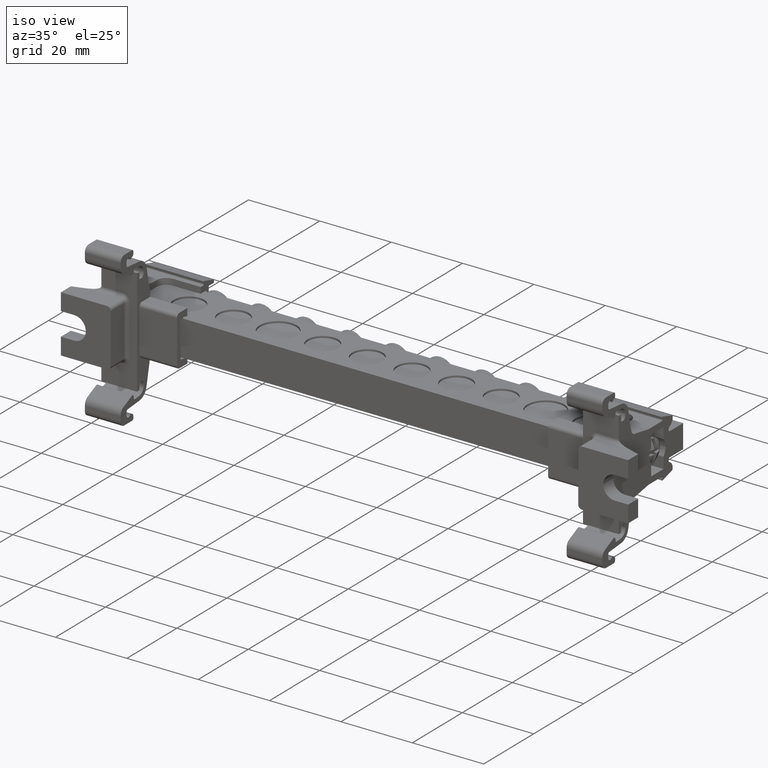
[diagram: clean part render]
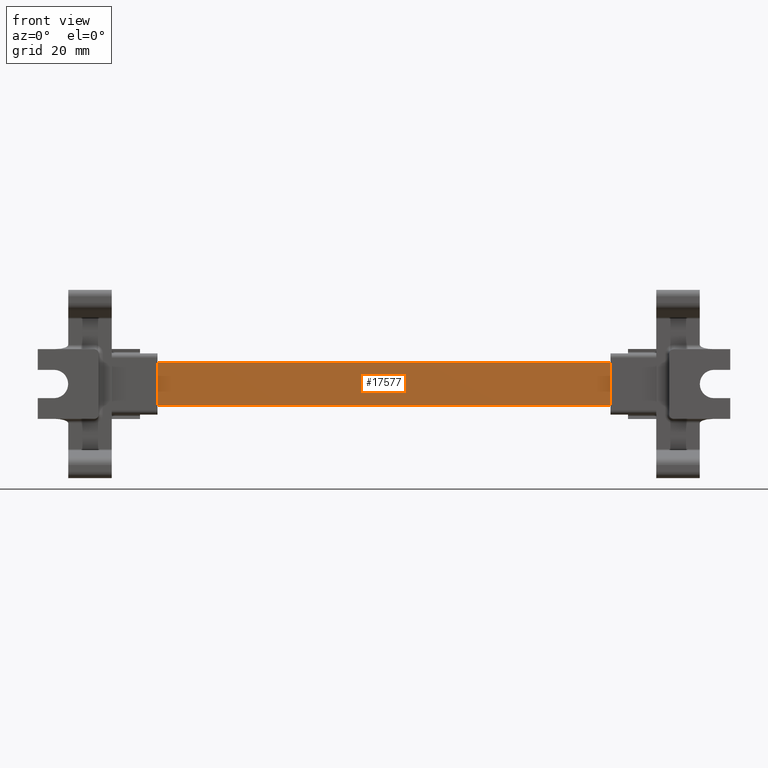
[diagram: tour spotlight — one face highlighted and labeled with its STEP entity id]
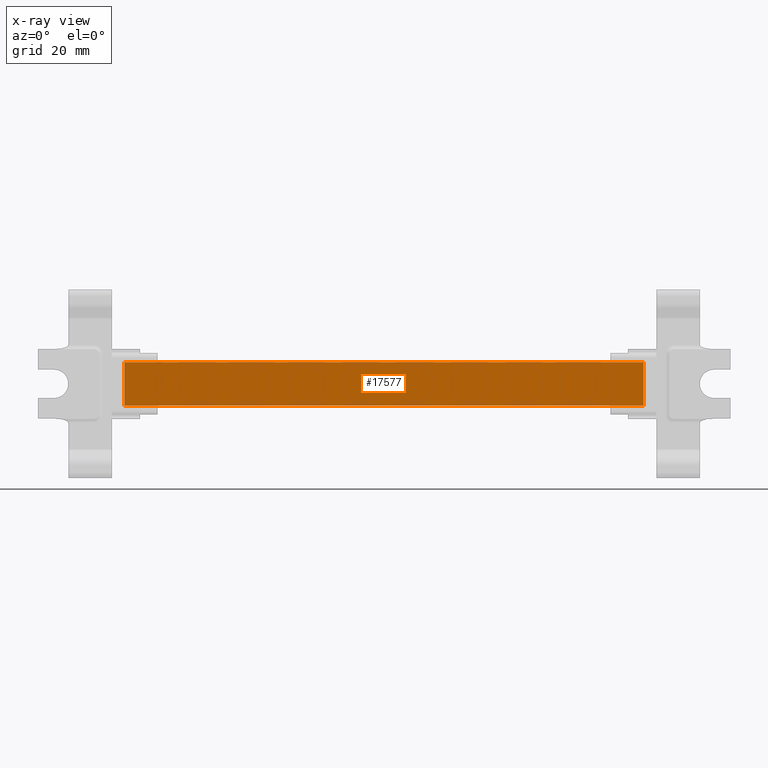
[diagram: x-ray of the same camera — body ghosted, this tour face saturated]
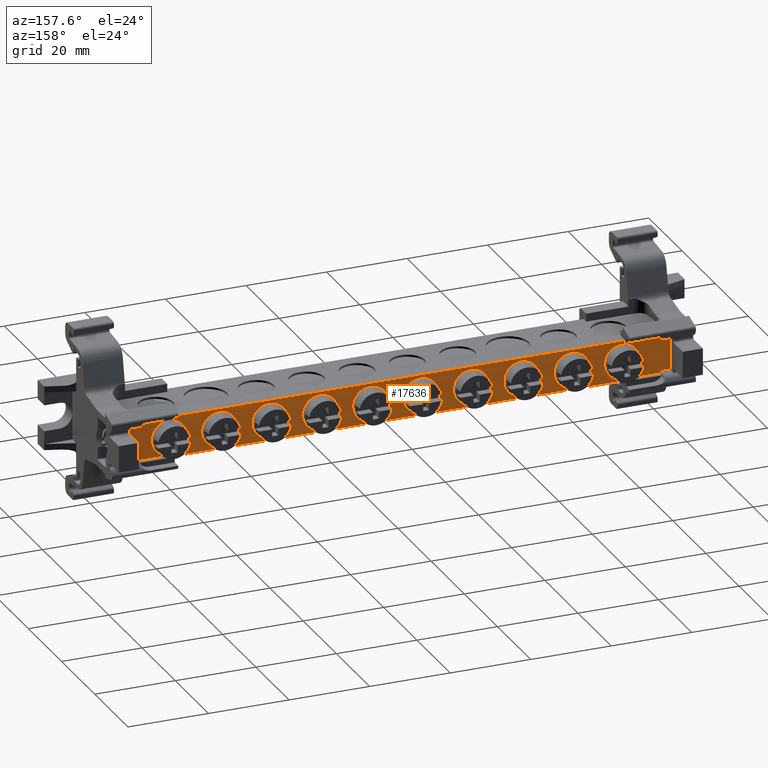
[diagram: tour spotlight — one face highlighted and labeled with its STEP entity id]
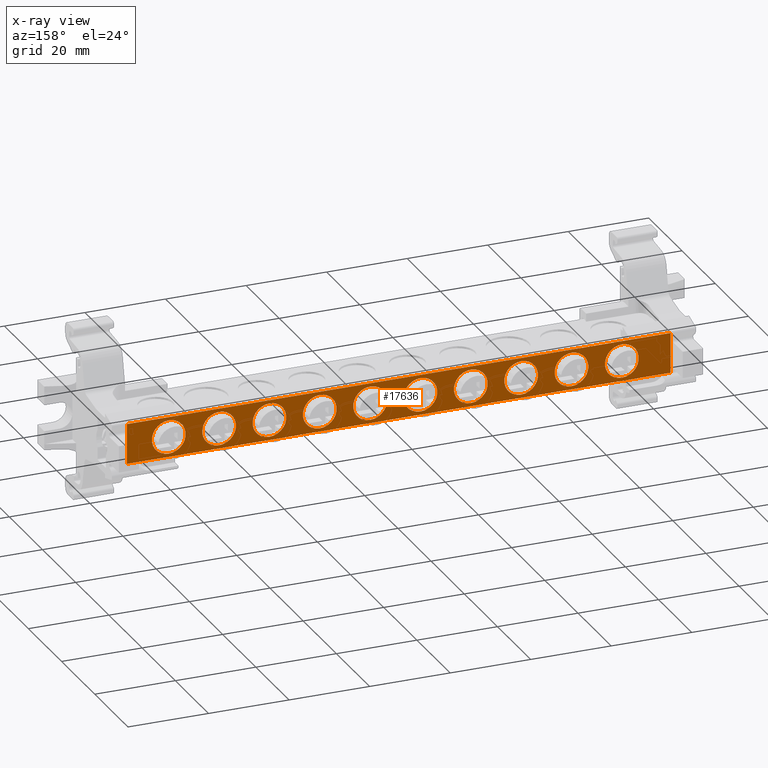
[diagram: x-ray of the same camera — body ghosted, this tour face saturated]
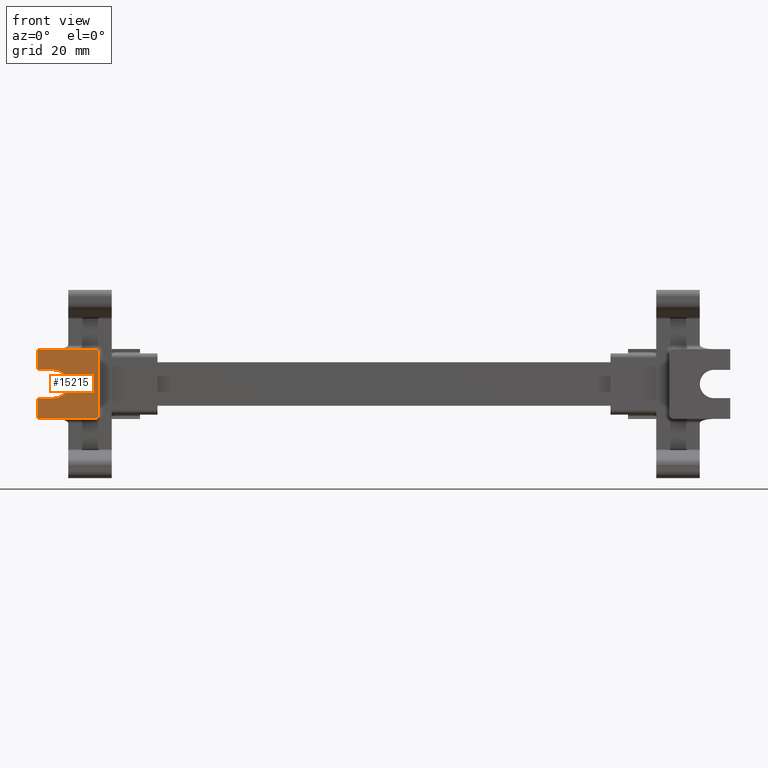
[diagram: tour spotlight — one face highlighted and labeled with its STEP entity id]
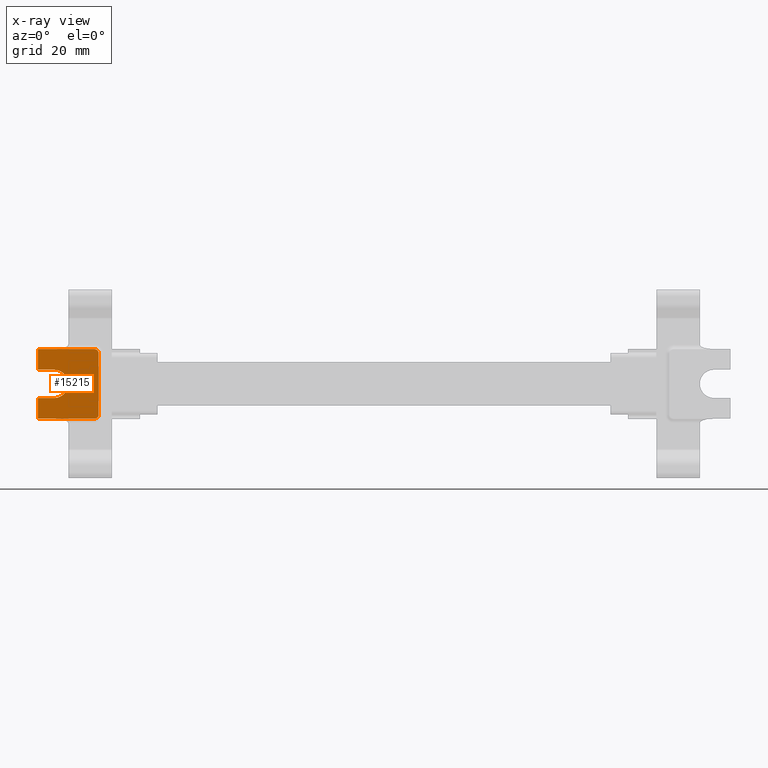
[diagram: x-ray of the same camera — body ghosted, this tour face saturated]
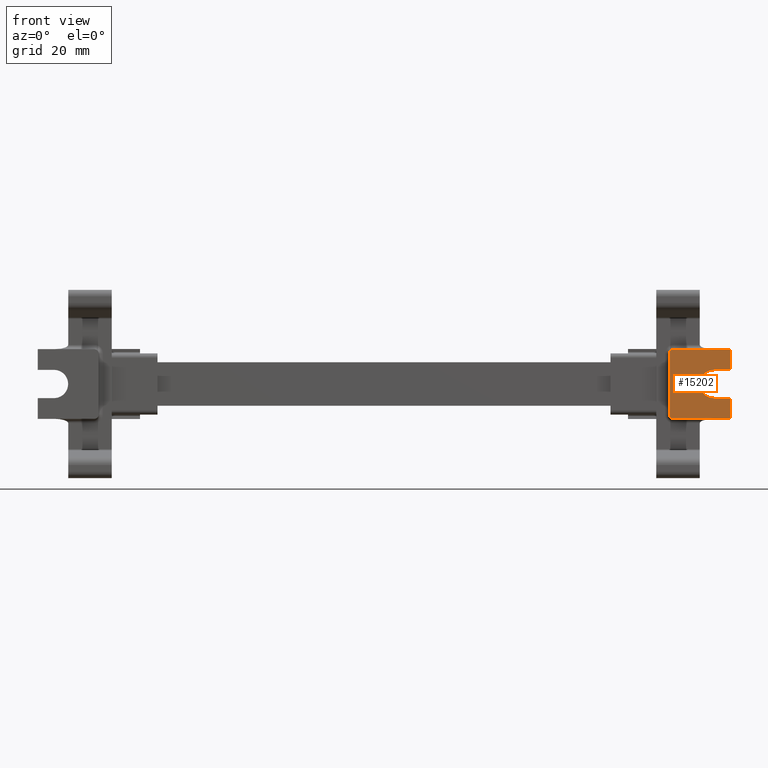
[diagram: tour spotlight — one face highlighted and labeled with its STEP entity id]
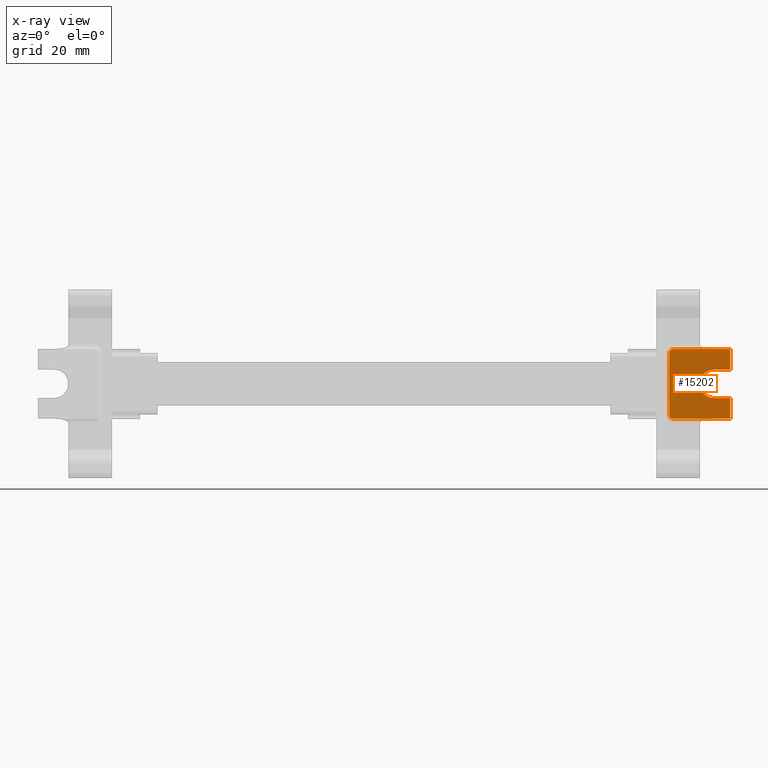
[diagram: x-ray of the same camera — body ghosted, this tour face saturated]
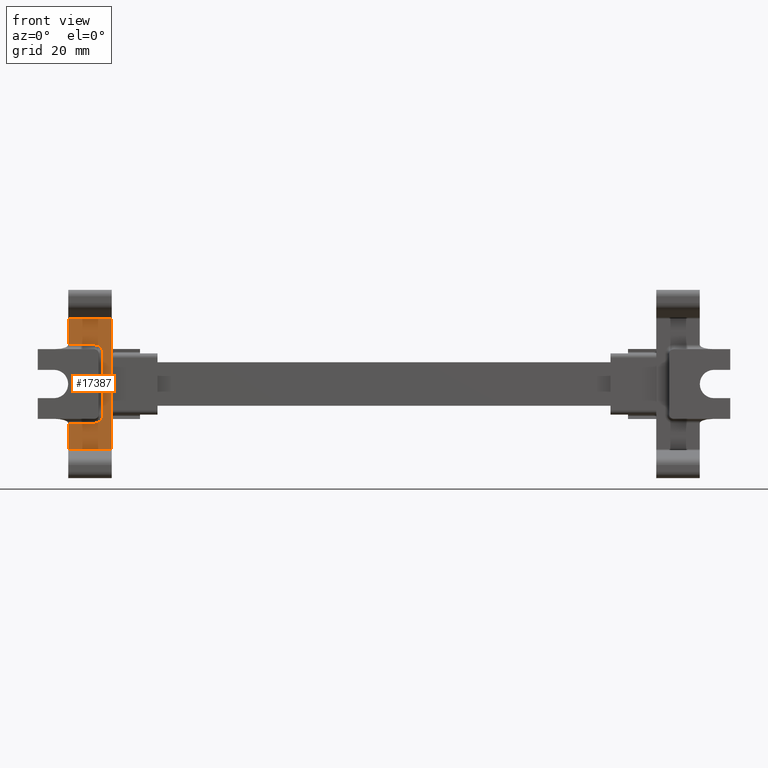
[diagram: tour spotlight — one face highlighted and labeled with its STEP entity id]
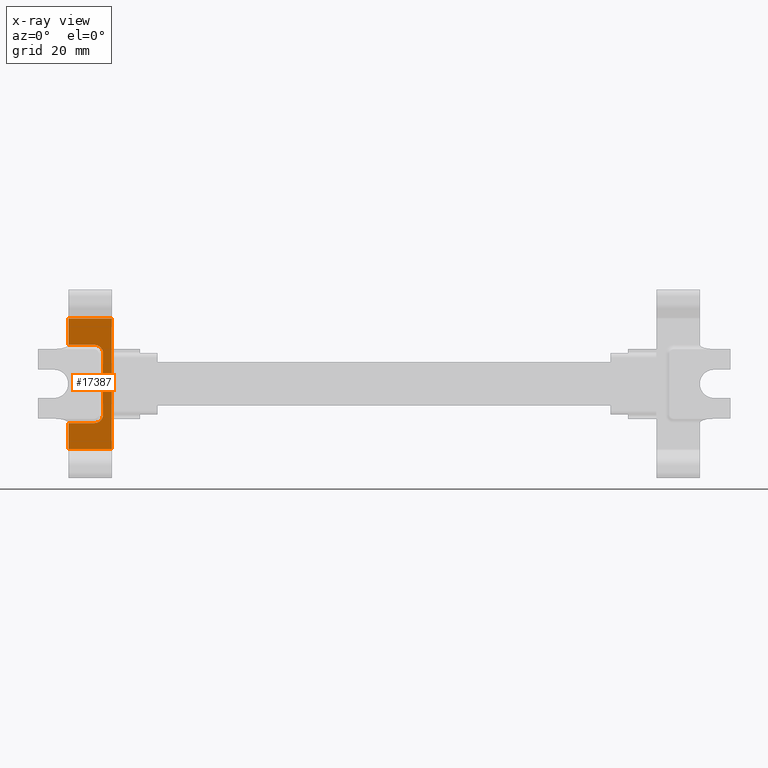
[diagram: x-ray of the same camera — body ghosted, this tour face saturated]
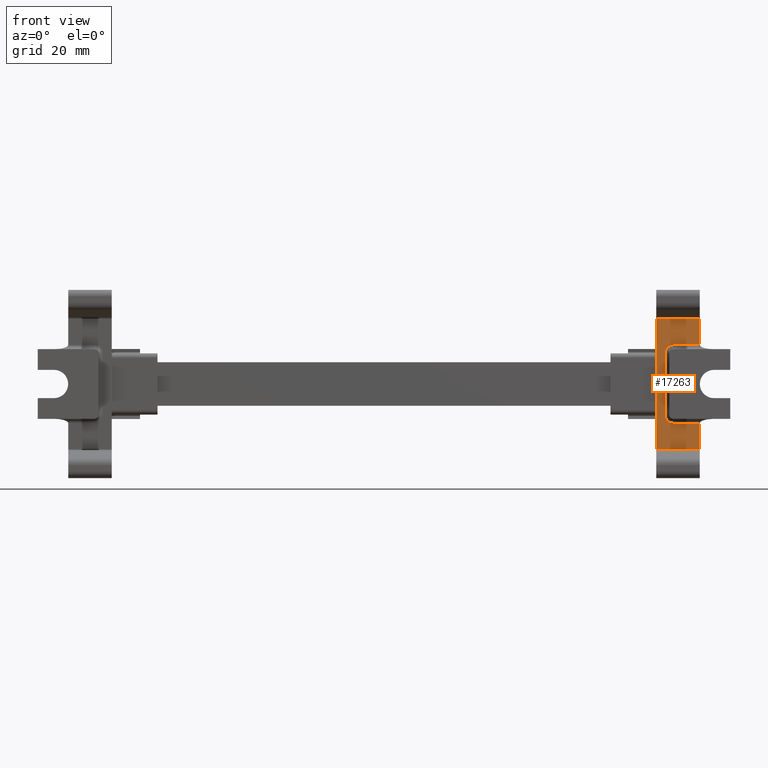
[diagram: tour spotlight — one face highlighted and labeled with its STEP entity id]
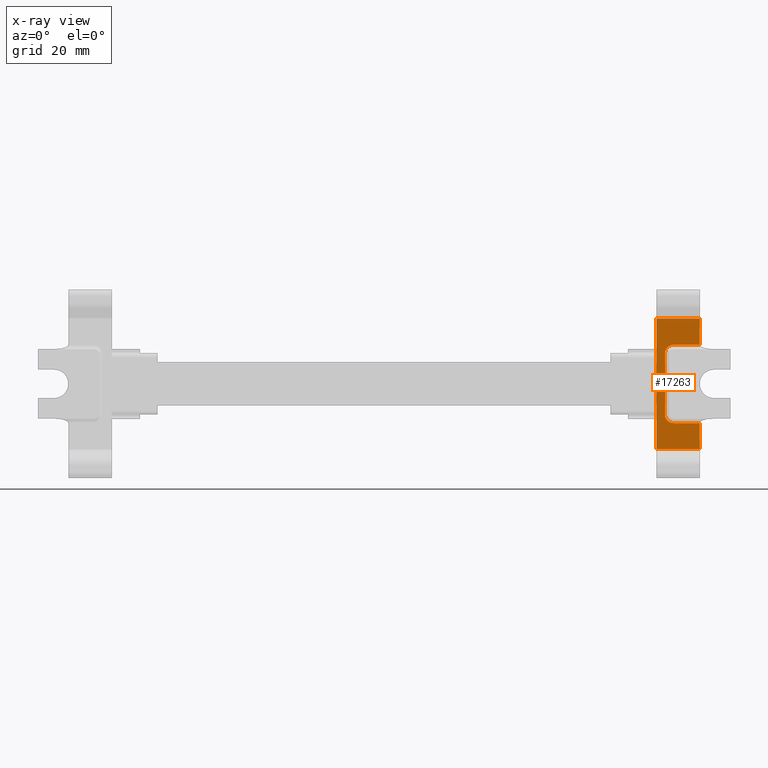
[diagram: x-ray of the same camera — body ghosted, this tour face saturated]
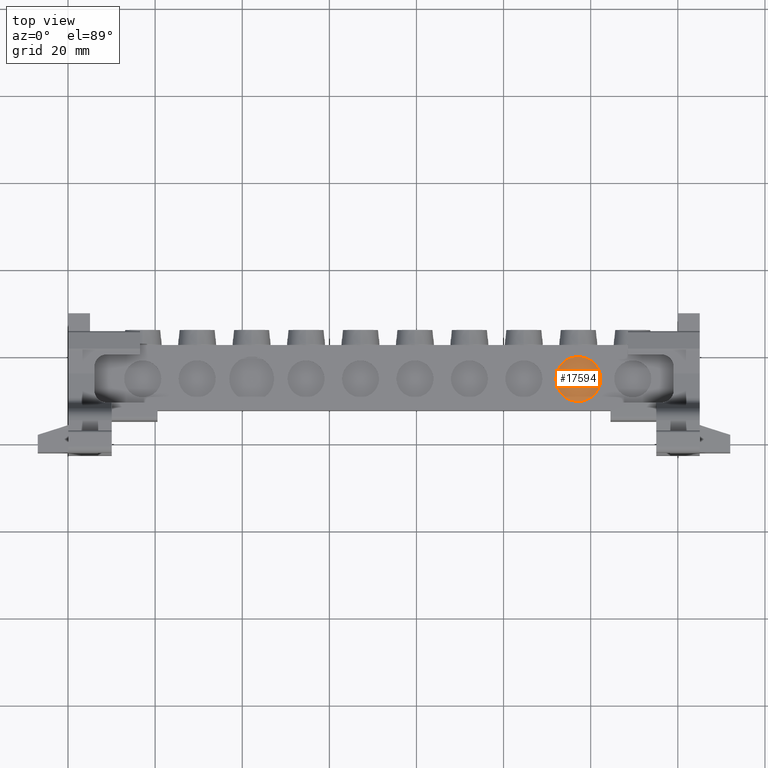
[diagram: tour spotlight — one face highlighted and labeled with its STEP entity id]
A machine part: a face-by-face anatomy tour. The part has 650 B-rep faces; the first image is the clean iso view, then the 7 largest visible faces are spotlighted one at a time (largest first), each with its STEP entity span.

Face 1 — front view, entity #17577. An x-ray twin of the same camera follows (body ghosted, this face saturated) — the face is partly hidden behind the body. In plain terms, the highlighted planar face has unit normal (0, 1, 0).
Definition (entity closure, byte-faithful):
#738 = LINE ( 'NONE', #763, #10992 ) ;
#744 = DIRECTION ( 'NONE',  ( -0.0000000000000000000, 0.0000000000000000000, -1.000000000000000000 ) ) ;
#763 = CARTESIAN_POINT ( 'NONE',  ( 32.14730230417598700, 47.41882648292838800, 43.07764998369307800 ) ) ;
#779 = DIRECTION ( 'NONE',  ( 0.0000000000000000000, -0.0000000000000000000, 1.000000000000000000 ) ) ;
#806 = CARTESIAN_POINT ( 'NONE',  ( -87.05269769582423600, 47.41882648292838800, 43.07764998369307800 ) ) ;
#807 = LINE ( 'NONE', #806, #10961 ) ;
#4073 = CARTESIAN_POINT ( 'NONE',  ( 32.14730230417600900, 47.41882648293010800, 33.07764998369310000 ) ) ;
#4427 = EDGE_LOOP ( 'NONE', ( #13177, #13223, #13134, #13189 ) ) ;
#5003 = CARTESIAN_POINT ( 'NONE',  ( 32.14730230417595900, 47.41882648292920500, 43.07764998369307800 ) ) ;
#5267 = CARTESIAN_POINT ( 'NONE',  ( -87.05269769582423600, 47.41882648293109500, 33.07764998369308500 ) ) ;
#5300 = CARTESIAN_POINT ( 'NONE',  ( -87.05269769582423600, 47.41882648292902800, 43.07764998369307800 ) ) ;
#6353 = VERTEX_POINT ( 'NONE', #5003 ) ;
#6622 = VERTEX_POINT ( 'NONE', #5267 ) ;
#6640 = VERTEX_POINT ( 'NONE', #5300 ) ;
#6673 = VERTEX_POINT ( 'NONE', #4073 ) ;
#10961 = VECTOR ( 'NONE', #779, 1000.000000000000000 ) ;
#10992 = VECTOR ( 'NONE', #744, 1000.000000000000000 ) ;
#11969 = AXIS2_PLACEMENT_3D ( 'NONE', #19708, #19717, #19719 ) ;
#12317 = DIRECTION ( 'NONE',  ( -1.000000000000000000, -0.0000000000000000000, 0.0000000000000000000 ) ) ;
#12326 = LINE ( 'NONE', #12346, #18634 ) ;
#12346 = CARTESIAN_POINT ( 'NONE',  ( -56.95269769582441200, 47.41882648292838800, 33.07764998369310000 ) ) ;
#12444 = CARTESIAN_POINT ( 'NONE',  ( -56.95269769582441200, 47.41882648292870100, 43.07764998369307800 ) ) ;
#12448 = DIRECTION ( 'NONE',  ( -1.000000000000000000, 0.0000000000000000000, -0.0000000000000000000 ) ) ;
#12449 = LINE ( 'NONE', #12444, #18669 ) ;
#13134 = ORIENTED_EDGE ( 'NONE', *, *, #14127, .F. ) ;
#13177 = ORIENTED_EDGE ( 'NONE', *, *, #14136, .F. ) ;
#13189 = ORIENTED_EDGE ( 'NONE', *, *, #14281, .T. ) ;
#13223 = ORIENTED_EDGE ( 'NONE', *, *, #14247, .F. ) ;
#14127 = EDGE_CURVE ( 'NONE', #6353, #6673, #738, .T. ) ;
#14136 = EDGE_CURVE ( 'NONE', #6622, #6640, #807, .T. ) ;
#14247 = EDGE_CURVE ( 'NONE', #6673, #6622, #12326, .T. ) ;
#14281 = EDGE_CURVE ( 'NONE', #6353, #6640, #12449, .T. ) ;
#17577 = ADVANCED_FACE ( 'NONE', ( #19720 ), #19700, .F. ) ;
#18634 = VECTOR ( 'NONE', #12317, 1000.000000000000000 ) ;
#18669 = VECTOR ( 'NONE', #12448, 1000.000000000000000 ) ;
#19700 = PLANE ( 'NONE',  #11969 ) ;
#19708 = CARTESIAN_POINT ( 'NONE',  ( -56.95269769582441200, 47.41882648292838800, 43.07764998369307800 ) ) ;
#19717 = DIRECTION ( 'NONE',  ( 0.0000000000000000000, 1.000000000000000000, 0.0000000000000000000 ) ) ;
#19719 = DIRECTION ( 'NONE',  ( 0.0000000000000000000, -0.0000000000000000000, 1.000000000000000000 ) ) ;
#19720 = FACE_OUTER_BOUND ( 'NONE', #4427, .T. ) ;

Face 2 — auxiliary view, entity #17636. An x-ray twin of the same camera follows (body ghosted, this face saturated) — the face is partly hidden behind the body. In plain terms, the highlighted planar face has unit normal (0, -1, 0).
Definition (entity closure, byte-faithful):
#401 = DIRECTION ( 'NONE',  ( 0.0000000000000000000, 0.0000000000000000000, -1.000000000000000000 ) ) ;
#410 = CARTESIAN_POINT ( 'NONE',  ( -82.85269769582441800, 62.41882648292838800, 38.07764998369309200 ) ) ;
#424 = DIRECTION ( 'NONE',  ( -0.0000000000000000000, -1.000000000000000000, -0.0000000000000000000 ) ) ;
#600 = CARTESIAN_POINT ( 'NONE',  ( -32.85269769582441100, 62.41882648292840200, 38.07764998369309200 ) ) ;
#627 = DIRECTION ( 'NONE',  ( 0.0000000000000000000, 0.0000000000000000000, -1.000000000000000000 ) ) ;
#640 = DIRECTION ( 'NONE',  ( 0.0000000000000000000, -1.000000000000000000, 0.0000000000000000000 ) ) ;
#753 = DIRECTION ( 'NONE',  ( 0.0000000000000000000, 0.0000000000000000000, -1.000000000000000000 ) ) ;
#755 = CARTESIAN_POINT ( 'NONE',  ( 4.647302304175593000, 62.41882648292841700, 38.07764998369309200 ) ) ;
#757 = DIRECTION ( 'NONE',  ( -0.0000000000000000000, -1.000000000000000000, 0.0000000000000000000 ) ) ;
#783 = DIRECTION ( 'NONE',  ( 0.0000000000000000000, 0.0000000000000000000, -1.000000000000000000 ) ) ;
#792 = CARTESIAN_POINT ( 'NONE',  ( -70.35269769582441800, 62.41882648292838800, 38.07764998369309200 ) ) ;
#801 = DIRECTION ( 'NONE',  ( -0.0000000000000000000, -1.000000000000000000, -0.0000000000000000000 ) ) ;
#802 = DIRECTION ( 'NONE',  ( 0.0000000000000000000, 0.0000000000000000000, -1.000000000000000000 ) ) ;
#805 = DIRECTION ( 'NONE',  ( 0.0000000000000000000, -1.000000000000000000, -0.0000000000000000000 ) ) ;
#809 = CARTESIAN_POINT ( 'NONE',  ( -57.85269769582440300, 62.41882648292838800, 38.07764998369309200 ) ) ;
#910 = CARTESIAN_POINT ( 'NONE',  ( -45.35269769582441100, 62.41882648292840200, 38.07764998369309200 ) ) ;
#917 = CARTESIAN_POINT ( 'NONE',  ( 17.14730230417558900, 62.41882648292841700, 38.07764998369309200 ) ) ;
#921 = LINE ( 'NONE', #922, #11044 ) ;
#922 = CARTESIAN_POINT ( 'NONE',  ( 40.04730230417599300, 62.41882648292838800, 59.68992767327149800 ) ) ;
#931 = DIRECTION ( 'NONE',  ( 0.0000000000000000000, 1.000000000000000000, -0.0000000000000000000 ) ) ;
#936 = DIRECTION ( 'NONE',  ( 0.0000000000000000000, 0.0000000000000000000, -1.000000000000000000 ) ) ;
#945 = DIRECTION ( 'NONE',  ( -0.0000000000000000000, 0.0000000000000000000, 1.000000000000000000 ) ) ;
#948 = DIRECTION ( 'NONE',  ( 0.0000000000000000000, -1.000000000000000000, 0.0000000000000000000 ) ) ;
#949 = DIRECTION ( 'NONE',  ( 0.0000000000000000000, 0.0000000000000000000, -1.000000000000000000 ) ) ;
#952 = DIRECTION ( 'NONE',  ( -0.0000000000000000000, -1.000000000000000000, 0.0000000000000000000 ) ) ;
#953 = CARTESIAN_POINT ( 'NONE',  ( 29.64730230417560000, 62.41882648292841700, 38.07764998369309200 ) ) ;
#955 = CARTESIAN_POINT ( 'NONE',  ( -56.95269769582441200, 62.41882648292838800, 43.07764998369307800 ) ) ;
#958 = CARTESIAN_POINT ( 'NONE',  ( -82.85269769582441800, 62.41882648292838800, 38.07764998369309200 ) ) ;
#967 = DIRECTION ( 'NONE',  ( 0.0000000000000000000, 1.000000000000000000, 0.0000000000000000000 ) ) ;
#968 = DIRECTION ( 'NONE',  ( 1.000000000000000000, -0.0000000000000000000, 0.0000000000000000000 ) ) ;
#969 = DIRECTION ( 'NONE',  ( 0.0000000000000000000, 0.0000000000000000000, -1.000000000000000000 ) ) ;
#971 = CARTESIAN_POINT ( 'NONE',  ( -7.852697695824407000, 62.41882648292841700, 38.07764998369309200 ) ) ;
#972 = DIRECTION ( 'NONE',  ( 0.0000000000000000000, 0.0000000000000000000, -1.000000000000000000 ) ) ;
#974 = CARTESIAN_POINT ( 'NONE',  ( -45.35269769582441100, 62.41882648292840200, 38.07764998369309200 ) ) ;
#980 = DIRECTION ( 'NONE',  ( 0.0000000000000000000, 0.0000000000000000000, -1.000000000000000000 ) ) ;
#981 = DIRECTION ( 'NONE',  ( 0.0000000000000000000, 0.0000000000000000000, -1.000000000000000000 ) ) ;
#983 = LINE ( 'NONE', #955, #11037 ) ;
#985 = DIRECTION ( 'NONE',  ( -0.0000000000000000000, -1.000000000000000000, -0.0000000000000000000 ) ) ;
#989 = DIRECTION ( 'NONE',  ( 0.0000000000000000000, -1.000000000000000000, 0.0000000000000000000 ) ) ;
#1046 = DIRECTION ( 'NONE',  ( 0.0000000000000000000, 0.0000000000000000000, -1.000000000000000000 ) ) ;
#1052 = DIRECTION ( 'NONE',  ( 0.0000000000000000000, -1.000000000000000000, 0.0000000000000000000 ) ) ;
#1066 = CARTESIAN_POINT ( 'NONE',  ( -32.85269769582441100, 62.41882648292840200, 38.07764998369309200 ) ) ;
#1886 = VERTEX_POINT ( 'NONE', #4736 ) ;
#1889 = VERTEX_POINT ( 'NONE', #4693 ) ;
#1891 = VERTEX_POINT ( 'NONE', #4735 ) ;
#1953 = VERTEX_POINT ( 'NONE', #4742 ) ;
#1963 = VERTEX_POINT ( 'NONE', #4747 ) ;
#2050 = VERTEX_POINT ( 'NONE', #4848 ) ;
#2119 = VERTEX_POINT ( 'NONE', #4893 ) ;
#2188 = VERTEX_POINT ( 'NONE', #4887 ) ;
#2201 = VERTEX_POINT ( 'NONE', #4895 ) ;
#4030 = CARTESIAN_POINT ( 'NONE',  ( 40.04730230417598600, 62.41882648292838800, 33.07764998369308500 ) ) ;
#4034 = CARTESIAN_POINT ( 'NONE',  ( -94.95269769582414200, 62.41882648292838800, 33.07764998369308500 ) ) ;
#4039 = CARTESIAN_POINT ( 'NONE',  ( 40.04730230417595700, 62.41882648292838800, 43.07764998369307800 ) ) ;
#4358 = EDGE_LOOP ( 'NONE', ( #13211, #13194 ) ) ;
#4369 = EDGE_LOOP ( 'NONE', ( #13202, #13218 ) ) ;
#4387 = EDGE_LOOP ( 'NONE', ( #13203, #13168 ) ) ;
#4395 = EDGE_LOOP ( 'NONE', ( #9118, #13199 ) ) ;
#4399 = EDGE_LOOP ( 'NONE', ( #13107, #13150 ) ) ;
#4408 = EDGE_LOOP ( 'NONE', ( #13201, #13187 ) ) ;
#4425 = EDGE_LOOP ( 'NONE', ( #13215, #13226 ) ) ;
#4428 = EDGE_LOOP ( 'NONE', ( #13220, #13170 ) ) ;
#4435 = EDGE_LOOP ( 'NONE', ( #13179, #13208 ) ) ;
#4436 = EDGE_LOOP ( 'NONE', ( #13175, #13198, #13166, #13171 ) ) ;
#4447 = EDGE_LOOP ( 'NONE', ( #13193, #13213 ) ) ;
#4693 = CARTESIAN_POINT ( 'NONE',  ( -7.852697695824407000, 62.41882648292841700, 33.89591168390694500 ) ) ;
#4735 = CARTESIAN_POINT ( 'NONE',  ( -7.852697695824407000, 62.41882648292841700, 42.25938828347923200 ) ) ;
#4736 = CARTESIAN_POINT ( 'NONE',  ( -32.85269769582441100, 62.41882648292840200, 33.89591168390694500 ) ) ;
#4742 = CARTESIAN_POINT ( 'NONE',  ( -20.35269769582440700, 62.41882648292840200, 42.25938828347923200 ) ) ;
#4747 = CARTESIAN_POINT ( 'NONE',  ( -20.35269769582440700, 62.41882648292840200, 33.89591168390694500 ) ) ;
#4848 = CARTESIAN_POINT ( 'NONE',  ( 29.64730230417560000, 62.41882648292841700, 42.25938828347923200 ) ) ;
#4887 = CARTESIAN_POINT ( 'NONE',  ( 17.14730230417558900, 62.41882648292841700, 33.89591168390694500 ) ) ;
#4893 = CARTESIAN_POINT ( 'NONE',  ( 29.64730230417560000, 62.41882648292841700, 33.89591168390694500 ) ) ;
#4895 = CARTESIAN_POINT ( 'NONE',  ( 17.14730230417558900, 62.41882648292841700, 42.25938828347923200 ) ) ;
#5058 = CARTESIAN_POINT ( 'NONE',  ( -94.95269769582411400, 62.41882648292838800, 43.07764998369307800 ) ) ;
#6385 = VERTEX_POINT ( 'NONE', #5058 ) ;
#6661 = VERTEX_POINT ( 'NONE', #4034 ) ;
#6666 = VERTEX_POINT ( 'NONE', #4030 ) ;
#6672 = VERTEX_POINT ( 'NONE', #4039 ) ;
#9118 = ORIENTED_EDGE ( 'NONE', *, *, #14279, .F. ) ;
#10778 = CIRCLE ( 'NONE', #10813, 4.181738299786144500 ) ;
#10813 = AXIS2_PLACEMENT_3D ( 'NONE', #410, #424, #401 ) ;
#10912 = CIRCLE ( 'NONE', #10946, 4.181738299786144500 ) ;
#10946 = AXIS2_PLACEMENT_3D ( 'NONE', #600, #640, #627 ) ;
#10970 = CIRCLE ( 'NONE', #11021, 4.181738299786144500 ) ;
#10976 = CIRCLE ( 'NONE', #10997, 4.181738299786144500 ) ;
#10997 = AXIS2_PLACEMENT_3D ( 'NONE', #792, #801, #783 ) ;
#11000 = AXIS2_PLACEMENT_3D ( 'NONE', #809, #805, #802 ) ;
#11014 = CIRCLE ( 'NONE', #11000, 4.181738299786144500 ) ;
#11021 = AXIS2_PLACEMENT_3D ( 'NONE', #755, #757, #753 ) ;
#11024 = CIRCLE ( 'NONE', #11031, 4.181738299786144500 ) ;
#11026 = CIRCLE ( 'NONE', #11033, 4.181738299786144500 ) ;
#11029 = CIRCLE ( 'NONE', #11061, 4.181738299786144500 ) ;
#11031 = AXIS2_PLACEMENT_3D ( 'NONE', #953, #967, #980 ) ;
#11033 = AXIS2_PLACEMENT_3D ( 'NONE', #910, #948, #936 ) ;
#11034 = CIRCLE ( 'NONE', #11040, 4.181738299786144500 ) ;
#11037 = VECTOR ( 'NONE', #968, 1000.000000000000000 ) ;
#11040 = AXIS2_PLACEMENT_3D ( 'NONE', #971, #952, #981 ) ;
#11042 = CIRCLE ( 'NONE', #11134, 4.181738299786144500 ) ;
#11043 = AXIS2_PLACEMENT_3D ( 'NONE', #958, #985, #972 ) ;
#11044 = VECTOR ( 'NONE', #945, 1000.000000000000000 ) ;
#11050 = CIRCLE ( 'NONE', #11043, 4.181738299786144500 ) ;
#11061 = AXIS2_PLACEMENT_3D ( 'NONE', #917, #931, #949 ) ;
#11134 = AXIS2_PLACEMENT_3D ( 'NONE', #974, #989, #969 ) ;
#11583 = AXIS2_PLACEMENT_3D ( 'NONE', #19855, #19871, #19838 ) ;
#11776 = DIRECTION ( 'NONE',  ( 0.0000000000000000000, 0.0000000000000000000, -1.000000000000000000 ) ) ;
#11780 = DIRECTION ( 'NONE',  ( -0.0000000000000000000, -1.000000000000000000, 0.0000000000000000000 ) ) ;
#11788 = CARTESIAN_POINT ( 'NONE',  ( -7.852697695824407000, 62.41882648292841700, 38.07764998369309200 ) ) ;
#12328 = DIRECTION ( 'NONE',  ( -0.0000000000000000000, -1.000000000000000000, 0.0000000000000000000 ) ) ;
#12329 = CARTESIAN_POINT ( 'NONE',  ( -20.35269769582440700, 62.41882648292840200, 38.07764998369309200 ) ) ;
#12334 = DIRECTION ( 'NONE',  ( 0.0000000000000000000, 0.0000000000000000000, -1.000000000000000000 ) ) ;
#12348 = DIRECTION ( 'NONE',  ( 0.0000000000000000000, 0.0000000000000000000, -1.000000000000000000 ) ) ;
#12368 = CARTESIAN_POINT ( 'NONE',  ( -57.85269769582440300, 62.41882648292838800, 38.07764998369309200 ) ) ;
#12370 = DIRECTION ( 'NONE',  ( 0.0000000000000000000, -1.000000000000000000, -0.0000000000000000000 ) ) ;
#12398 = LINE ( 'NONE', #12435, #18604 ) ;
#12412 = DIRECTION ( 'NONE',  ( 1.000000000000000000, 0.0000000000000000000, 0.0000000000000000000 ) ) ;
#12435 = CARTESIAN_POINT ( 'NONE',  ( -2.841710223138088400, 62.41882648292838800, 33.07764998369308500 ) ) ;
#12451 = CARTESIAN_POINT ( 'NONE',  ( -70.35269769582441800, 62.41882648292838800, 38.07764998369309200 ) ) ;
#12453 = DIRECTION ( 'NONE',  ( -0.0000000000000000000, -1.000000000000000000, -0.0000000000000000000 ) ) ;
#12454 = LINE ( 'NONE', #12480, #18694 ) ;
#12455 = DIRECTION ( 'NONE',  ( 0.0000000000000000000, 0.0000000000000000000, -1.000000000000000000 ) ) ;
#12457 = DIRECTION ( 'NONE',  ( 0.0000000000000000000, -0.0000000000000000000, -1.000000000000000000 ) ) ;
#12461 = DIRECTION ( 'NONE',  ( -0.0000000000000000000, -1.000000000000000000, 0.0000000000000000000 ) ) ;
#12465 = DIRECTION ( 'NONE',  ( 0.0000000000000000000, 0.0000000000000000000, -1.000000000000000000 ) ) ;
#12468 = DIRECTION ( 'NONE',  ( 0.0000000000000000000, 1.000000000000000000, -0.0000000000000000000 ) ) ;
#12469 = DIRECTION ( 'NONE',  ( 0.0000000000000000000, 0.0000000000000000000, -1.000000000000000000 ) ) ;
#12470 = CARTESIAN_POINT ( 'NONE',  ( 17.14730230417558900, 62.41882648292841700, 38.07764998369309200 ) ) ;
#12477 = CARTESIAN_POINT ( 'NONE',  ( -20.35269769582440700, 62.41882648292840200, 38.07764998369309200 ) ) ;
#12480 = CARTESIAN_POINT ( 'NONE',  ( -94.95269769582422700, 62.41882648292838800, 59.68992767327149800 ) ) ;
#12490 = CARTESIAN_POINT ( 'NONE',  ( 4.647302304175593000, 62.41882648292841700, 38.07764998369309200 ) ) ;
#12499 = DIRECTION ( 'NONE',  ( -0.0000000000000000000, -1.000000000000000000, 0.0000000000000000000 ) ) ;
#12502 = DIRECTION ( 'NONE',  ( 0.0000000000000000000, 0.0000000000000000000, -1.000000000000000000 ) ) ;
#12533 = DIRECTION ( 'NONE',  ( 0.0000000000000000000, 1.000000000000000000, 0.0000000000000000000 ) ) ;
#12550 = CARTESIAN_POINT ( 'NONE',  ( 29.64730230417560000, 62.41882648292841700, 38.07764998369309200 ) ) ;
#12561 = DIRECTION ( 'NONE',  ( 0.0000000000000000000, 0.0000000000000000000, -1.000000000000000000 ) ) ;
#13107 = ORIENTED_EDGE ( 'NONE', *, *, #14009, .T. ) ;
#13150 = ORIENTED_EDGE ( 'NONE', *, *, #14193, .T. ) ;
#13166 = ORIENTED_EDGE ( 'NONE', *, *, #14285, .F. ) ;
#13168 = ORIENTED_EDGE ( 'NONE', *, *, #14411, .T. ) ;
#13170 = ORIENTED_EDGE ( 'NONE', *, *, #14230, .T. ) ;
#13171 = ORIENTED_EDGE ( 'NONE', *, *, #14195, .T. ) ;
#13175 = ORIENTED_EDGE ( 'NONE', *, *, #14185, .F. ) ;
#13179 = ORIENTED_EDGE ( 'NONE', *, *, #14145, .T. ) ;
#13187 = ORIENTED_EDGE ( 'NONE', *, *, #14287, .T. ) ;
#13193 = ORIENTED_EDGE ( 'NONE', *, *, #14313, .F. ) ;
#13194 = ORIENTED_EDGE ( 'NONE', *, *, #14181, .T. ) ;
#13198 = ORIENTED_EDGE ( 'NONE', *, *, #14265, .F. ) ;
#13199 = ORIENTED_EDGE ( 'NONE', *, *, #14186, .F. ) ;
#13201 = ORIENTED_EDGE ( 'NONE', *, *, #14235, .T. ) ;
#13202 = ORIENTED_EDGE ( 'NONE', *, *, #14143, .T. ) ;
#13203 = ORIENTED_EDGE ( 'NONE', *, *, #14196, .T. ) ;
#13208 = ORIENTED_EDGE ( 'NONE', *, *, #14283, .T. ) ;
#13211 = ORIENTED_EDGE ( 'NONE', *, *, #14198, .T. ) ;
#13213 = ORIENTED_EDGE ( 'NONE', *, *, #14192, .F. ) ;
#13215 = ORIENTED_EDGE ( 'NONE', *, *, #14126, .T. ) ;
#13218 = ORIENTED_EDGE ( 'NONE', *, *, #14253, .T. ) ;
#13220 = ORIENTED_EDGE ( 'NONE', *, *, #14082, .T. ) ;
#13226 = ORIENTED_EDGE ( 'NONE', *, *, #14293, .T. ) ;
#14009 = EDGE_CURVE ( 'NONE', #15853, #15745, #10778, .T. ) ;
#14082 = EDGE_CURVE ( 'NONE', #1886, #15831, #10912, .T. ) ;
#14126 = EDGE_CURVE ( 'NONE', #15847, #15832, #10970, .T. ) ;
#14143 = EDGE_CURVE ( 'NONE', #15774, #15777, #11014, .T. ) ;
#14145 = EDGE_CURVE ( 'NONE', #15784, #15792, #10976, .T. ) ;
#14181 = EDGE_CURVE ( 'NONE', #15788, #15737, #11026, .T. ) ;
#14185 = EDGE_CURVE ( 'NONE', #6666, #6672, #921, .T. ) ;
#14186 = EDGE_CURVE ( 'NONE', #2201, #2188, #11029, .T. ) ;
#14192 = EDGE_CURVE ( 'NONE', #2050, #2119, #11024, .T. ) ;
#14193 = EDGE_CURVE ( 'NONE', #15745, #15853, #11050, .T. ) ;
#14195 = EDGE_CURVE ( 'NONE', #6385, #6672, #983, .T. ) ;
#14196 = EDGE_CURVE ( 'NONE', #1889, #1891, #11034, .T. ) ;
#14198 = EDGE_CURVE ( 'NONE', #15737, #15788, #11042, .T. ) ;
#14230 = EDGE_CURVE ( 'NONE', #15831, #1886, #18715, .T. ) ;
#14235 = EDGE_CURVE ( 'NONE', #1963, #1953, #18616, .T. ) ;
#14253 = EDGE_CURVE ( 'NONE', #15777, #15774, #18585, .T. ) ;
#14265 = EDGE_CURVE ( 'NONE', #6661, #6666, #12398, .T. ) ;
#14279 = EDGE_CURVE ( 'NONE', #2188, #2201, #18685, .T. ) ;
#14283 = EDGE_CURVE ( 'NONE', #15792, #15784, #18644, .T. ) ;
#14285 = EDGE_CURVE ( 'NONE', #6385, #6661, #12454, .T. ) ;
#14287 = EDGE_CURVE ( 'NONE', #1953, #1963, #18686, .T. ) ;
#14293 = EDGE_CURVE ( 'NONE', #15832, #15847, #18673, .T. ) ;
#14313 = EDGE_CURVE ( 'NONE', #2119, #2050, #18697, .T. ) ;
#14411 = EDGE_CURVE ( 'NONE', #1891, #1889, #15347, .T. ) ;
#15347 = CIRCLE ( 'NONE', #15380, 4.181738299786144500 ) ;
#15380 = AXIS2_PLACEMENT_3D ( 'NONE', #11788, #11780, #11776 ) ;
#15737 = VERTEX_POINT ( 'NONE', #16358 ) ;
#15745 = VERTEX_POINT ( 'NONE', #16324 ) ;
#15774 = VERTEX_POINT ( 'NONE', #16338 ) ;
#15777 = VERTEX_POINT ( 'NONE', #16318 ) ;
#15784 = VERTEX_POINT ( 'NONE', #16304 ) ;
#15788 = VERTEX_POINT ( 'NONE', #16361 ) ;
#15792 = VERTEX_POINT ( 'NONE', #16349 ) ;
#15831 = VERTEX_POINT ( 'NONE', #16321 ) ;
#15832 = VERTEX_POINT ( 'NONE', #16346 ) ;
#15847 = VERTEX_POINT ( 'NONE', #16336 ) ;
#15853 = VERTEX_POINT ( 'NONE', #16310 ) ;
#16304 = CARTESIAN_POINT ( 'NONE',  ( -70.35269769582441800, 62.41882648292838800, 33.89591168390694500 ) ) ;
#16310 = CARTESIAN_POINT ( 'NONE',  ( -82.85269769582441800, 62.41882648292838800, 33.89591168390694500 ) ) ;
#16318 = CARTESIAN_POINT ( 'NONE',  ( -57.85269769582440300, 62.41882648292838800, 42.25938828347923200 ) ) ;
#16321 = CARTESIAN_POINT ( 'NONE',  ( -32.85269769582441100, 62.41882648292840200, 42.25938828347923200 ) ) ;
#16324 = CARTESIAN_POINT ( 'NONE',  ( -82.85269769582441800, 62.41882648292838800, 42.25938828347923200 ) ) ;
#16336 = CARTESIAN_POINT ( 'NONE',  ( 4.647302304175593000, 62.41882648292841700, 33.89591168390694500 ) ) ;
#16338 = CARTESIAN_POINT ( 'NONE',  ( -57.85269769582440300, 62.41882648292838800, 33.89591168390694500 ) ) ;
#16346 = CARTESIAN_POINT ( 'NONE',  ( 4.647302304175593900, 62.41882648292841700, 42.25938828347923200 ) ) ;
#16349 = CARTESIAN_POINT ( 'NONE',  ( -70.35269769582441800, 62.41882648292838800, 42.25938828347923200 ) ) ;
#16358 = CARTESIAN_POINT ( 'NONE',  ( -45.35269769582441100, 62.41882648292840200, 33.89591168390694500 ) ) ;
#16361 = CARTESIAN_POINT ( 'NONE',  ( -45.35269769582441100, 62.41882648292840200, 42.25938828347923200 ) ) ;
#17636 = ADVANCED_FACE ( 'NONE', ( #19869, #19887, #19846, #19857, #19841, #19850, #19875, #19859, #19874, #19856, #19882 ), #19870, .F. ) ;
#18576 = AXIS2_PLACEMENT_3D ( 'NONE', #12368, #12370, #12348 ) ;
#18585 = CIRCLE ( 'NONE', #18576, 4.181738299786144500 ) ;
#18587 = AXIS2_PLACEMENT_3D ( 'NONE', #1066, #1052, #1046 ) ;
#18604 = VECTOR ( 'NONE', #12412, 1000.000000000000000 ) ;
#18607 = AXIS2_PLACEMENT_3D ( 'NONE', #12329, #12328, #12334 ) ;
#18616 = CIRCLE ( 'NONE', #18607, 4.181738299786144500 ) ;
#18638 = AXIS2_PLACEMENT_3D ( 'NONE', #12451, #12453, #12469 ) ;
#18640 = AXIS2_PLACEMENT_3D ( 'NONE', #12477, #12461, #12465 ) ;
#18644 = CIRCLE ( 'NONE', #18638, 4.181738299786144500 ) ;
#18664 = AXIS2_PLACEMENT_3D ( 'NONE', #12550, #12533, #12561 ) ;
#18673 = CIRCLE ( 'NONE', #18690, 4.181738299786144500 ) ;
#18685 = CIRCLE ( 'NONE', #18698, 4.181738299786144500 ) ;
#18686 = CIRCLE ( 'NONE', #18640, 4.181738299786144500 ) ;
#18690 = AXIS2_PLACEMENT_3D ( 'NONE', #12490, #12499, #12502 ) ;
#18694 = VECTOR ( 'NONE', #12457, 1000.000000000000000 ) ;
#18697 = CIRCLE ( 'NONE', #18664, 4.181738299786144500 ) ;
#18698 = AXIS2_PLACEMENT_3D ( 'NONE', #12470, #12468, #12455 ) ;
#18715 = CIRCLE ( 'NONE', #18587, 4.181738299786144500 ) ;
#19838 = DIRECTION ( 'NONE',  ( 0.0000000000000000000, -0.0000000000000000000, -1.000000000000000000 ) ) ;
#19841 = FACE_BOUND ( 'NONE', #4425, .T. ) ;
#19846 = FACE_BOUND ( 'NONE', #4369, .T. ) ;
#19850 = FACE_BOUND ( 'NONE', #4387, .T. ) ;
#19855 = CARTESIAN_POINT ( 'NONE',  ( -2.841710223138088400, 62.41882648292838800, 59.68992767327149800 ) ) ;
#19856 = FACE_BOUND ( 'NONE', #4447, .T. ) ;
#19857 = FACE_BOUND ( 'NONE', #4358, .T. ) ;
#19859 = FACE_BOUND ( 'NONE', #4428, .T. ) ;
#19869 = FACE_BOUND ( 'NONE', #4399, .T. ) ;
#19870 = PLANE ( 'NONE',  #11583 ) ;
#19871 = DIRECTION ( 'NONE',  ( 0.0000000000000000000, -1.000000000000000000, 0.0000000000000000000 ) ) ;
#19874 = FACE_BOUND ( 'NONE', #4395, .T. ) ;
#19875 = FACE_BOUND ( 'NONE', #4408, .T. ) ;
#19882 = FACE_OUTER_BOUND ( 'NONE', #4436, .T. ) ;
#19887 = FACE_BOUND ( 'NONE', #4435, .T. ) ;

Face 3 — front view, entity #15215. An x-ray twin of the same camera follows (body ghosted, this face saturated) — the face is partly hidden behind the body. In plain terms, the highlighted planar face has unit normal (-0, -1, -0).
Definition (entity closure, byte-faithful):
#119 = AXIS2_PLACEMENT_3D ( 'NONE', #16037, #16057, #16058 ) ;
#1779 = EDGE_CURVE ( 'NONE', #12856, #12926, #11108, .T. ) ;
#1807 = EDGE_CURVE ( 'NONE', #12928, #12916, #4637, .T. ) ;
#1836 = EDGE_CURVE ( 'NONE', #12928, #12871, #4607, .T. ) ;
#1854 = EDGE_CURVE ( 'NONE', #12931, #12878, #4639, .T. ) ;
#1892 = EDGE_CURVE ( 'NONE', #12925, #12878, #4699, .T. ) ;
#1894 = EDGE_CURVE ( 'NONE', #12916, #12925, #11089, .T. ) ;
#1986 = EDGE_CURVE ( 'NONE', #12836, #12856, #4792, .T. ) ;
#2012 = EDGE_CURVE ( 'NONE', #12819, #12931, #4813, .T. ) ;
#3000 = CARTESIAN_POINT ( 'NONE',  ( -106.9526976958242100, 37.74082521647829200, 34.82764998369117400 ) ) ;
#3003 = CARTESIAN_POINT ( 'NONE',  ( -103.2026976958242300, 37.74082521647834200, 41.32764998369124500 ) ) ;
#3007 = CARTESIAN_POINT ( 'NONE',  ( -93.95269769582419900, 37.74082521647832800, 46.07664888101803100 ) ) ;
#3014 = CARTESIAN_POINT ( 'NONE',  ( -106.9526976958241700, 37.74082521647835600, 41.32764998369124500 ) ) ;
#3031 = CARTESIAN_POINT ( 'NONE',  ( -106.9526976958242000, 37.74082521647820700, 30.07865108636443800 ) ) ;
#3037 = CARTESIAN_POINT ( 'NONE',  ( -103.2026976958241800, 37.74082521647832800, 34.82764998369123100 ) ) ;
#4154 = CARTESIAN_POINT ( 'NONE',  ( -93.95269769582418500, 37.74082521647815700, 30.07865108636448100 ) ) ;
#4161 = CARTESIAN_POINT ( 'NONE',  ( -92.95269769582419900, 37.74082521647825000, 45.07664888101799500 ) ) ;
#4200 = CARTESIAN_POINT ( 'NONE',  ( -92.95269769582417000, 37.74082521647817100, 31.07865108636449800 ) ) ;
#4513 = EDGE_LOOP ( 'NONE', ( #7739, #7740, #7751, #7732, #7749, #7744, #7745, #7761, #7753, #7752 ) ) ;
#4562 = CARTESIAN_POINT ( 'NONE',  ( -93.95269769582419900, 37.74082521647829900, 45.07664888101799500 ) ) ;
#4589 = DIRECTION ( 'NONE',  ( -3.469446951953610200E-015, -1.000000000000000000, 1.218190204392360100E-029 ) ) ;
#4607 = LINE ( 'NONE', #4684, #11131 ) ;
#4615 = DIRECTION ( 'NONE',  ( 1.000000000000000000, -6.102589228612392700E-072, 2.227204515935145200E-043 ) ) ;
#4622 = CARTESIAN_POINT ( 'NONE',  ( -103.2026976958245100, 37.74082521647835600, 41.32764998369124500 ) ) ;
#4623 = DIRECTION ( 'NONE',  ( 1.000000000000000000, 0.0000000000000000000, 0.0000000000000000000 ) ) ;
#4637 = LINE ( 'NONE', #4622, #11094 ) ;
#4639 = LINE ( 'NONE', #4671, #11123 ) ;
#4643 = DIRECTION ( 'NONE',  ( -3.469447191060519900E-015, 2.407412596397884400E-029, 1.000000000000000000 ) ) ;
#4655 = DIRECTION ( 'NONE',  ( -3.552941225665730200E-015, 2.465348221171358300E-029, 1.000000000000000000 ) ) ;
#4671 = CARTESIAN_POINT ( 'NONE',  ( -106.9526976958241800, 37.74082521647828500, 30.07865108636445200 ) ) ;
#4684 = CARTESIAN_POINT ( 'NONE',  ( -106.9526976958241800, 37.74082521647835600, 46.07664888101801600 ) ) ;
#4686 = CARTESIAN_POINT ( 'NONE',  ( -103.2026976958242300, 37.74082521647832800, 38.07764998369125200 ) ) ;
#4699 = LINE ( 'NONE', #4733, #11137 ) ;
#4714 = DIRECTION ( 'NONE',  ( -1.000000000000000000, 0.0000000000000000000, -7.022388416726250500E-015 ) ) ;
#4720 = DIRECTION ( 'NONE',  ( -1.000000000000000000, 8.540177112501197500E-015, 0.0000000000000000000 ) ) ;
#4733 = CARTESIAN_POINT ( 'NONE',  ( -103.2026976958245100, 37.74082521647829900, 34.82764998369120200 ) ) ;
#4734 = DIRECTION ( 'NONE',  ( 7.897574987183420400E-015, 1.000000000000000000, 2.740021935547339900E-029 ) ) ;
#4792 = LINE ( 'NONE', #4839, #11153 ) ;
#4797 = DIRECTION ( 'NONE',  ( -1.000000000000000000, 0.0000000000000000000, -3.511194208363125300E-015 ) ) ;
#4812 = DIRECTION ( 'NONE',  ( -2.163952870251253600E-043, -2.740021935547334900E-029, 1.000000000000000000 ) ) ;
#4813 = LINE ( 'NONE', #4827, #11170 ) ;
#4827 = CARTESIAN_POINT ( 'NONE',  ( -73.46027626311598600, 37.74082521647817100, 30.07865108636455200 ) ) ;
#4839 = CARTESIAN_POINT ( 'NONE',  ( -92.95269769582417000, 37.74082521647820000, 46.07664888101810200 ) ) ;
#7529 = CARTESIAN_POINT ( 'NONE',  ( -106.9526976958242000, 37.74082521647835600, 46.07664888101798800 ) ) ;
#7732 = ORIENTED_EDGE ( 'NONE', *, *, #1779, .T. ) ;
#7739 = ORIENTED_EDGE ( 'NONE', *, *, #2012, .F. ) ;
#7740 = ORIENTED_EDGE ( 'NONE', *, *, #14917, .T. ) ;
#7744 = ORIENTED_EDGE ( 'NONE', *, *, #1836, .F. ) ;
#7745 = ORIENTED_EDGE ( 'NONE', *, *, #1807, .T. ) ;
#7749 = ORIENTED_EDGE ( 'NONE', *, *, #14531, .F. ) ;
#7751 = ORIENTED_EDGE ( 'NONE', *, *, #1986, .T. ) ;
#7752 = ORIENTED_EDGE ( 'NONE', *, *, #1854, .F. ) ;
#7753 = ORIENTED_EDGE ( 'NONE', *, *, #1892, .T. ) ;
#7761 = ORIENTED_EDGE ( 'NONE', *, *, #1894, .T. ) ;
#9546 = AXIS2_PLACEMENT_3D ( 'NONE', #19977, #19979, #20057 ) ;
#9835 = CIRCLE ( 'NONE', #9546, 1.000000000000000900 ) ;
#11089 = CIRCLE ( 'NONE', #11098, 3.250000000000002700 ) ;
#11094 = VECTOR ( 'NONE', #4615, 1000.000000000000000 ) ;
#11098 = AXIS2_PLACEMENT_3D ( 'NONE', #4686, #4734, #4720 ) ;
#11108 = CIRCLE ( 'NONE', #11126, 1.000000000000000900 ) ;
#11123 = VECTOR ( 'NONE', #4655, 1000.000000000000000 ) ;
#11126 = AXIS2_PLACEMENT_3D ( 'NONE', #4562, #4589, #4623 ) ;
#11131 = VECTOR ( 'NONE', #4643, 1000.000000000000000 ) ;
#11137 = VECTOR ( 'NONE', #4714, 1000.000000000000000 ) ;
#11153 = VECTOR ( 'NONE', #4812, 1000.000000000000000 ) ;
#11170 = VECTOR ( 'NONE', #4797, 1000.000000000000000 ) ;
#12217 = CARTESIAN_POINT ( 'NONE',  ( -73.46027626311604300, 37.74082521647835600, 46.07664888101810200 ) ) ;
#12222 = DIRECTION ( 'NONE',  ( 1.000000000000000000, 0.0000000000000000000, 3.511194208363125300E-015 ) ) ;
#12231 = LINE ( 'NONE', #12217, #15574 ) ;
#12819 = VERTEX_POINT ( 'NONE', #4154 ) ;
#12836 = VERTEX_POINT ( 'NONE', #4200 ) ;
#12856 = VERTEX_POINT ( 'NONE', #4161 ) ;
#12871 = VERTEX_POINT ( 'NONE', #7529 ) ;
#12878 = VERTEX_POINT ( 'NONE', #3000 ) ;
#12916 = VERTEX_POINT ( 'NONE', #3003 ) ;
#12925 = VERTEX_POINT ( 'NONE', #3037 ) ;
#12926 = VERTEX_POINT ( 'NONE', #3007 ) ;
#12928 = VERTEX_POINT ( 'NONE', #3014 ) ;
#12931 = VERTEX_POINT ( 'NONE', #3031 ) ;
#14531 = EDGE_CURVE ( 'NONE', #12871, #12926, #12231, .T. ) ;
#14917 = EDGE_CURVE ( 'NONE', #12819, #12836, #9835, .T. ) ;
#15215 = ADVANCED_FACE ( 'NONE', ( #16080 ), #16047, .T. ) ;
#15574 = VECTOR ( 'NONE', #12222, 1000.000000000000000 ) ;
#16037 = CARTESIAN_POINT ( 'NONE',  ( -73.46027626311610000, 37.74082521647805100, 46.07664888101810200 ) ) ;
#16047 = PLANE ( 'NONE',  #119 ) ;
#16057 = DIRECTION ( 'NONE',  ( -7.897574987183420400E-015, -1.000000000000000000, -2.740021935547334900E-029 ) ) ;
#16058 = DIRECTION ( 'NONE',  ( 1.000000000000000000, -7.897574987183420400E-015, 0.0000000000000000000 ) ) ;
#16080 = FACE_OUTER_BOUND ( 'NONE', #4513, .T. ) ;
#19977 = CARTESIAN_POINT ( 'NONE',  ( -93.95269769582419900, 37.74082521647814300, 31.07865108636449800 ) ) ;
#19979 = DIRECTION ( 'NONE',  ( -3.469446951953610200E-015, -1.000000000000000000, 1.860993940841795100E-029 ) ) ;
#20057 = DIRECTION ( 'NONE',  ( 1.000000000000000000, 0.0000000000000000000, 0.0000000000000000000 ) ) ;

Face 4 — front view, entity #15202. An x-ray twin of the same camera follows (body ghosted, this face saturated) — the face is partly hidden behind the body. In plain terms, the highlighted planar face has unit normal (-0, -1, -0).
Definition (entity closure, byte-faithful):
#77 = AXIS2_PLACEMENT_3D ( 'NONE', #16014, #15993, #15990 ) ;
#2329 = VERTEX_POINT ( 'NONE', #4923 ) ;
#2452 = VERTEX_POINT ( 'NONE', #5014 ) ;
#4108 = CARTESIAN_POINT ( 'NONE',  ( 52.04730230417587200, 37.74082521647739700, 34.82764998369158600 ) ) ;
#4111 = CARTESIAN_POINT ( 'NONE',  ( 38.04730230417575900, 37.74082521647744000, 45.07664888101832900 ) ) ;
#4122 = CARTESIAN_POINT ( 'NONE',  ( 38.04730230417580800, 37.74082521647746800, 31.07865108636483600 ) ) ;
#4139 = CARTESIAN_POINT ( 'NONE',  ( 39.04730230417578700, 37.74082521647741100, 46.07664888101837200 ) ) ;
#4146 = CARTESIAN_POINT ( 'NONE',  ( 39.04730230417586500, 37.74082521647742500, 30.07865108636481500 ) ) ;
#4153 = CARTESIAN_POINT ( 'NONE',  ( 52.04730230417576600, 37.74082521647745400, 41.32764998369167100 ) ) ;
#4182 = CARTESIAN_POINT ( 'NONE',  ( 52.04730230417575100, 37.74082521647744700, 46.07664888101842100 ) ) ;
#4184 = CARTESIAN_POINT ( 'NONE',  ( 48.29730230417582200, 37.74082521647739700, 34.82764998369159300 ) ) ;
#4550 = EDGE_LOOP ( 'NONE', ( #7661, #7680, #7691, #7648, #7698, #7675, #7683, #7668, #7671, #7652, #7646 ) ) ;
#4751 = CARTESIAN_POINT ( 'NONE',  ( 52.04730230417590100, 37.74082521647739700, 30.07865108636486100 ) ) ;
#4923 = CARTESIAN_POINT ( 'NONE',  ( 45.04730230417582200, 37.74082521647742500, 38.07764998369166400 ) ) ;
#5014 = CARTESIAN_POINT ( 'NONE',  ( 48.29730230417579400, 37.74082521647739700, 41.32764998369165000 ) ) ;
#5323 = LINE ( 'NONE', #5326, #9774 ) ;
#5326 = CARTESIAN_POINT ( 'NONE',  ( 48.29730230417555200, 37.74082521647739700, 34.82764998369159300 ) ) ;
#5333 = DIRECTION ( 'NONE',  ( -1.000000000000000000, -0.0000000000000000000, -0.0000000000000000000 ) ) ;
#5450 = CARTESIAN_POINT ( 'NONE',  ( 48.29730230417582200, 37.74082521647739700, 38.07764998369166400 ) ) ;
#5478 = DIRECTION ( 'NONE',  ( -1.000000000000000000, 8.540177112501197500E-015, 0.0000000000000000000 ) ) ;
#5493 = DIRECTION ( 'NONE',  ( 7.897574987183420400E-015, 1.000000000000000000, 2.740021935547339900E-029 ) ) ;
#6158 = LINE ( 'NONE', #6182, #9688 ) ;
#6182 = CARTESIAN_POINT ( 'NONE',  ( 48.29730230417551000, 37.74082521647739700, 41.32764998369164300 ) ) ;
#6185 = DIRECTION ( 'NONE',  ( 1.000000000000000000, 0.0000000000000000000, 7.022388416726250500E-015 ) ) ;
#6200 = DIRECTION ( 'NONE',  ( -1.000000000000000000, 8.540177112501197500E-015, 0.0000000000000000000 ) ) ;
#6215 = DIRECTION ( 'NONE',  ( 7.897574987183420400E-015, 1.000000000000000000, 2.740021935547339900E-029 ) ) ;
#6240 = CARTESIAN_POINT ( 'NONE',  ( 48.29730230417582200, 37.74082521647739700, 38.07764998369166400 ) ) ;
#6251 = LINE ( 'NONE', #6260, #9766 ) ;
#6260 = CARTESIAN_POINT ( 'NONE',  ( 38.04730230417575900, 37.74082521647746800, 46.07664888101830800 ) ) ;
#6261 = DIRECTION ( 'NONE',  ( 2.163952870251253600E-043, 2.740021935547334900E-029, -1.000000000000000000 ) ) ;
#6262 = CARTESIAN_POINT ( 'NONE',  ( 18.55488087146772700, 37.74082521647739700, 30.07865108636474400 ) ) ;
#6268 = LINE ( 'NONE', #6262, #9750 ) ;
#6280 = DIRECTION ( 'NONE',  ( -1.000000000000000000, 0.0000000000000000000, -3.511194208363125300E-015 ) ) ;
#7646 = ORIENTED_EDGE ( 'NONE', *, *, #14902, .F. ) ;
#7648 = ORIENTED_EDGE ( 'NONE', *, *, #14798, .T. ) ;
#7652 = ORIENTED_EDGE ( 'NONE', *, *, #14818, .F. ) ;
#7661 = ORIENTED_EDGE ( 'NONE', *, *, #14850, .T. ) ;
#7668 = ORIENTED_EDGE ( 'NONE', *, *, #14816, .T. ) ;
#7671 = ORIENTED_EDGE ( 'NONE', *, *, #14954, .T. ) ;
#7675 = ORIENTED_EDGE ( 'NONE', *, *, #14864, .F. ) ;
#7680 = ORIENTED_EDGE ( 'NONE', *, *, #14800, .T. ) ;
#7683 = ORIENTED_EDGE ( 'NONE', *, *, #14907, .T. ) ;
#7691 = ORIENTED_EDGE ( 'NONE', *, *, #14581, .T. ) ;
#7698 = ORIENTED_EDGE ( 'NONE', *, *, #14968, .F. ) ;
#8180 = VERTEX_POINT ( 'NONE', #4111 ) ;
#8186 = VERTEX_POINT ( 'NONE', #4122 ) ;
#8193 = VERTEX_POINT ( 'NONE', #4108 ) ;
#8197 = VERTEX_POINT ( 'NONE', #4139 ) ;
#9535 = CIRCLE ( 'NONE', #9538, 1.000000000000000900 ) ;
#9538 = AXIS2_PLACEMENT_3D ( 'NONE', #20119, #20116, #20120 ) ;
#9573 = VECTOR ( 'NONE', #20194, 1000.000000000000000 ) ;
#9688 = VECTOR ( 'NONE', #6185, 1000.000000000000000 ) ;
#9717 = AXIS2_PLACEMENT_3D ( 'NONE', #6240, #6215, #6200 ) ;
#9750 = VECTOR ( 'NONE', #6280, 1000.000000000000000 ) ;
#9758 = CIRCLE ( 'NONE', #9717, 3.250000000000002700 ) ;
#9766 = VECTOR ( 'NONE', #6261, 1000.000000000000000 ) ;
#9774 = VECTOR ( 'NONE', #5333, 1000.000000000000000 ) ;
#9786 = VECTOR ( 'NONE', #19945, 1000.000000000000000 ) ;
#9838 = VECTOR ( 'NONE', #20893, 1000.000000000000000 ) ;
#9937 = CIRCLE ( 'NONE', #9972, 1.000000000000000900 ) ;
#9972 = AXIS2_PLACEMENT_3D ( 'NONE', #19989, #19997, #19995 ) ;
#12807 = VERTEX_POINT ( 'NONE', #4184 ) ;
#12810 = VERTEX_POINT ( 'NONE', #4153 ) ;
#12818 = VERTEX_POINT ( 'NONE', #4182 ) ;
#12861 = VERTEX_POINT ( 'NONE', #4146 ) ;
#12868 = VERTEX_POINT ( 'NONE', #4751 ) ;
#14581 = EDGE_CURVE ( 'NONE', #2329, #2452, #15295, .T. ) ;
#14798 = EDGE_CURVE ( 'NONE', #2452, #12810, #6158, .T. ) ;
#14800 = EDGE_CURVE ( 'NONE', #12807, #2329, #9758, .T. ) ;
#14816 = EDGE_CURVE ( 'NONE', #8180, #8186, #6251, .T. ) ;
#14818 = EDGE_CURVE ( 'NONE', #12868, #12861, #6268, .T. ) ;
#14850 = EDGE_CURVE ( 'NONE', #8193, #12807, #5323, .T. ) ;
#14864 = EDGE_CURVE ( 'NONE', #8197, #12818, #20924, .T. ) ;
#14902 = EDGE_CURVE ( 'NONE', #8193, #12868, #19944, .T. ) ;
#14907 = EDGE_CURVE ( 'NONE', #8197, #8180, #9937, .T. ) ;
#14954 = EDGE_CURVE ( 'NONE', #8186, #12861, #9535, .T. ) ;
#14968 = EDGE_CURVE ( 'NONE', #12818, #12810, #20158, .T. ) ;
#15202 = ADVANCED_FACE ( 'NONE', ( #16010 ), #16008, .T. ) ;
#15295 = CIRCLE ( 'NONE', #15329, 3.250000000000002700 ) ;
#15329 = AXIS2_PLACEMENT_3D ( 'NONE', #5450, #5493, #5478 ) ;
#15990 = DIRECTION ( 'NONE',  ( 1.000000000000000000, -7.897574987183420400E-015, 0.0000000000000000000 ) ) ;
#15993 = DIRECTION ( 'NONE',  ( -7.897574987183420400E-015, -1.000000000000000000, -2.740021935547334900E-029 ) ) ;
#16008 = PLANE ( 'NONE',  #77 ) ;
#16010 = FACE_OUTER_BOUND ( 'NONE', #4550, .T. ) ;
#16014 = CARTESIAN_POINT ( 'NONE',  ( 18.55488087146765300, 37.74082521647761700, 46.07664888101830800 ) ) ;
#19944 = LINE ( 'NONE', #19948, #9786 ) ;
#19945 = DIRECTION ( 'NONE',  ( 3.469447191060519900E-015, -3.072631274696783600E-029, -1.000000000000000000 ) ) ;
#19948 = CARTESIAN_POINT ( 'NONE',  ( 52.04730230417587200, 37.74082521647739700, 30.07865108636487900 ) ) ;
#19989 = CARTESIAN_POINT ( 'NONE',  ( 39.04730230417575100, 37.74082521647739700, 45.07664888101832900 ) ) ;
#19995 = DIRECTION ( 'NONE',  ( 1.000000000000000000, -1.387778780781444400E-014, 0.0000000000000000000 ) ) ;
#19997 = DIRECTION ( 'NONE',  ( -1.232570302241323000E-014, -1.000000000000000000, -1.891413297845499200E-029 ) ) ;
#20116 = DIRECTION ( 'NONE',  ( -1.232570302241323000E-014, -1.000000000000000000, -1.248609561396064200E-029 ) ) ;
#20119 = CARTESIAN_POINT ( 'NONE',  ( 39.04730230417585800, 37.74082521647745400, 31.07865108636483600 ) ) ;
#20120 = DIRECTION ( 'NONE',  ( 1.000000000000000000, -1.387778780781444400E-014, 0.0000000000000000000 ) ) ;
#20158 = LINE ( 'NONE', #20188, #9573 ) ;
#20188 = CARTESIAN_POINT ( 'NONE',  ( 52.04730230417575100, 37.74082521647747500, 46.07664888101842100 ) ) ;
#20194 = DIRECTION ( 'NONE',  ( 3.552941225665730200E-015, -3.146575729778737600E-029, -1.000000000000000000 ) ) ;
#20893 = DIRECTION ( 'NONE',  ( 1.000000000000000000, 0.0000000000000000000, 3.511194208363125300E-015 ) ) ;
#20902 = CARTESIAN_POINT ( 'NONE',  ( 18.55488087146765600, 37.74082521647742500, 46.07664888101830800 ) ) ;
#20924 = LINE ( 'NONE', #20902, #9838 ) ;

Face 5 — front view, entity #17387. An x-ray twin of the same camera follows (body ghosted, this face saturated) — the face is partly hidden behind the body. In plain terms, the highlighted planar face has unit normal (-0, -1, -0).
Definition (entity closure, byte-faithful):
#37 = AXIS2_PLACEMENT_3D ( 'NONE', #19237, #19238, #19239 ) ;
#1296 = ORIENTED_EDGE ( 'NONE', *, *, #13356, .T. ) ;
#1350 = ORIENTED_EDGE ( 'NONE', *, *, #13327, .T. ) ;
#2515 = DIRECTION ( 'NONE',  ( 3.511194208363125300E-015, -2.772991955511191100E-029, -1.000000000000000000 ) ) ;
#2552 = LINE ( 'NONE', #2559, #10493 ) ;
#2559 = CARTESIAN_POINT ( 'NONE',  ( -89.95269769582414200, 43.96882648293839700, 28.56414688357875100 ) ) ;
#2611 = CARTESIAN_POINT ( 'NONE',  ( -99.95269769582421300, 43.96882648293847500, 49.54146295254189900 ) ) ;
#2620 = DIRECTION ( 'NONE',  ( 2.265165414331192000E-043, 2.868178419334055400E-029, -1.000000000000000000 ) ) ;
#2642 = LINE ( 'NONE', #2611, #10515 ) ;
#2701 = LINE ( 'NONE', #2703, #10578 ) ;
#2703 = CARTESIAN_POINT ( 'NONE',  ( -99.95269769582404300, 43.96882648293847500, 49.54146295254189900 ) ) ;
#2707 = DIRECTION ( 'NONE',  ( 2.265165414331192000E-043, 2.868178419334055400E-029, -1.000000000000000000 ) ) ;
#3072 = LINE ( 'NONE', #3128, #11166 ) ;
#3097 = CARTESIAN_POINT ( 'NONE',  ( -92.08163350402911400, 43.96882648293840400, 30.37201446603337000 ) ) ;
#3098 = CARTESIAN_POINT ( 'NONE',  ( -91.97047835765080500, 43.96882648293841800, 30.76379987197788800 ) ) ;
#3102 = CARTESIAN_POINT ( 'NONE',  ( -91.95282783130541300, 43.96882648293841800, 30.95132106522383400 ) ) ;
#3103 = CARTESIAN_POINT ( 'NONE',  ( -92.02161745385301100, 43.96882648293841100, 30.55110436383810700 ) ) ;
#3104 = CARTESIAN_POINT ( 'NONE',  ( -92.99818037693027900, 43.96882648293842500, 29.31851709373634000 ) ) ;
#3105 = CARTESIAN_POINT ( 'NONE',  ( -93.15278197534992400, 43.96882648293843200, 29.24549258468275400 ) ) ;
#3108 = DIRECTION ( 'NONE',  ( -1.000000000000000000, 7.897574987183420400E-015, -0.0000000000000000000 ) ) ;
#3109 = LINE ( 'NONE', #3114, #11180 ) ;
#3111 = CARTESIAN_POINT ( 'NONE',  ( -92.05482370582061000, 43.96882648293841800, 30.44627641409668000 ) ) ;
#3112 = CARTESIAN_POINT ( 'NONE',  ( -93.18446145765014400, 43.96882648293842500, 29.23201161532049900 ) ) ;
#3113 = CARTESIAN_POINT ( 'NONE',  ( -93.45194178316747000, 43.96882648293843200, 29.12571969615174800 ) ) ;
#3114 = CARTESIAN_POINT ( 'NONE',  ( -89.95269769582419900, 43.96882648293839700, 23.07587375111814200 ) ) ;
#3117 = CARTESIAN_POINT ( 'NONE',  ( -92.19440694517041400, 43.96882648293839000, 30.08626930166933600 ) ) ;
#3122 = CARTESIAN_POINT ( 'NONE',  ( -93.10563008864950500, 43.96882648293843200, 29.26625787700767800 ) ) ;
#3123 = DIRECTION ( 'NONE',  ( 1.000000000000000000, -7.897574987183420400E-015, 0.0000000000000000000 ) ) ;
#3127 = CARTESIAN_POINT ( 'NONE',  ( -92.34382215501730700, 43.96882648293843200, 29.85929940393069200 ) ) ;
#3128 = CARTESIAN_POINT ( 'NONE',  ( -89.95269769582419900, 43.96882648293839700, 53.07942621626440200 ) ) ;
#3129 = CARTESIAN_POINT ( 'NONE',  ( -92.79356638248633300, 43.96882648293842500, 29.43826299907582500 ) ) ;
#3130 = CARTESIAN_POINT ( 'NONE',  ( -91.95269769582414200, 43.96882648293841100, 31.07865108636447000 ) ) ;
#3131 = CARTESIAN_POINT ( 'NONE',  ( -93.69733825620880900, 43.96882648293841100, 29.07891189685998900 ) ) ;
#3139 = CARTESIAN_POINT ( 'NONE',  ( -92.08679072798221900, 43.96882648293840400, 30.35847369008911700 ) ) ;
#3140 = CARTESIAN_POINT ( 'NONE',  ( -93.95269769582411400, 43.96882648293843200, 29.07865108636449800 ) ) ;
#3141 = CARTESIAN_POINT ( 'NONE',  ( -93.20179368254586900, 43.96882648293842500, 29.22490915849523000 ) ) ;
#3142 = CARTESIAN_POINT ( 'NONE',  ( -92.07069139320671500, 43.96882648293841100, 30.40167582227789800 ) ) ;
#3143 = CARTESIAN_POINT ( 'NONE',  ( -92.63581512266759400, 43.96882648293841800, 29.56700658402197500 ) ) ;
#3150 = LINE ( 'NONE', #3156, #11162 ) ;
#3156 = CARTESIAN_POINT ( 'NONE',  ( -91.95269769582419900, 43.96882648293841100, 49.54146295254189900 ) ) ;
#3176 = DIRECTION ( 'NONE',  ( 2.265165414331192000E-043, 2.868178419334055400E-029, -1.000000000000000000 ) ) ;
#3194 = CARTESIAN_POINT ( 'NONE',  ( -89.95269769582419900, 43.96882648293839700, 47.07664888101800200 ) ) ;
#3212 = LINE ( 'NONE', #3219, #11253 ) ;
#3219 = CARTESIAN_POINT ( 'NONE',  ( -89.95269769582419900, 43.96882648293839700, 29.07865108636449800 ) ) ;
#3225 = DIRECTION ( 'NONE',  ( 1.000000000000000000, -7.897574987183420400E-015, 0.0000000000000000000 ) ) ;
#3232 = LINE ( 'NONE', #3194, #11211 ) ;
#3239 = DIRECTION ( 'NONE',  ( -1.000000000000000000, 7.897574987183420400E-015, -0.0000000000000000000 ) ) ;
#3252 = CARTESIAN_POINT ( 'NONE',  ( -93.95269769582418500, 43.96882648293843200, 47.07664888101802300 ) ) ;
#3262 = CARTESIAN_POINT ( 'NONE',  ( -93.82536767467746600, 43.96882648293842500, 47.07651874553666000 ) ) ;
#3268 = CARTESIAN_POINT ( 'NONE',  ( -93.63784648142697600, 43.96882648293842500, 47.05886821919128200 ) ) ;
#3270 = CARTESIAN_POINT ( 'NONE',  ( -93.42515097328978900, 43.96882648293843900, 47.00772912298905500 ) ) ;
#3274 = CARTESIAN_POINT ( 'NONE',  ( -93.32032302355165100, 43.96882648293843200, 46.97452287102145600 ) ) ;
#3279 = CARTESIAN_POINT ( 'NONE',  ( -92.11953919413852500, 43.96882648293841800, 45.87656460148605200 ) ) ;
#3281 = CARTESIAN_POINT ( 'NONE',  ( -91.99976630561135900, 43.96882648293840400, 45.57740479365918400 ) ) ;
#3283 = CARTESIAN_POINT ( 'NONE',  ( -92.31230960852106200, 43.96882648293839700, 46.23578019433384900 ) ) ;
#3289 = CARTESIAN_POINT ( 'NONE',  ( -92.73334601340643200, 43.96882648293843200, 46.68552442184925200 ) ) ;
#3290 = CARTESIAN_POINT ( 'NONE',  ( -92.44105319347332300, 43.96882648293842500, 46.39353145416188100 ) ) ;
#3292 = CARTESIAN_POINT ( 'NONE',  ( -92.96031591110644900, 43.96882648293843900, 46.83493963165756200 ) ) ;
#3295 = CARTESIAN_POINT ( 'NONE',  ( -92.10605822477805300, 43.96882648293841100, 45.84488511918856100 ) ) ;
#3298 = CARTESIAN_POINT ( 'NONE',  ( -93.24606107549146800, 43.96882648293843900, 46.94771307281291700 ) ) ;
#3299 = CARTESIAN_POINT ( 'NONE',  ( -91.95295850631966100, 43.96882648293839000, 45.33200832061802300 ) ) ;
#3312 = CARTESIAN_POINT ( 'NONE',  ( -92.14030448646097700, 43.96882648293841100, 45.92371648818280500 ) ) ;
#3314 = CARTESIAN_POINT ( 'NONE',  ( -91.95269769582419900, 43.96882648293841100, 45.07664888101804500 ) ) ;
#3317 = CARTESIAN_POINT ( 'NONE',  ( -92.19256370318515800, 43.96882648293842500, 46.03116619989524600 ) ) ;
#3318 = CARTESIAN_POINT ( 'NONE',  ( -93.27572243173466400, 43.96882648293842500, 46.95865518363538600 ) ) ;
#3320 = CARTESIAN_POINT ( 'NONE',  ( -92.09895576795474900, 43.96882648293839700, 45.82755289429670900 ) ) ;
#3321 = CARTESIAN_POINT ( 'NONE',  ( -93.23252029955006000, 43.96882648293843200, 46.94255584886070000 ) ) ;
#8861 = ORIENTED_EDGE ( 'NONE', *, *, #13755, .T. ) ;
#8914 = ORIENTED_EDGE ( 'NONE', *, *, #13362, .T. ) ;
#8918 = ORIENTED_EDGE ( 'NONE', *, *, #13332, .T. ) ;
#8919 = ORIENTED_EDGE ( 'NONE', *, *, #13735, .F. ) ;
#8925 = ORIENTED_EDGE ( 'NONE', *, *, #13324, .T. ) ;
#8926 = ORIENTED_EDGE ( 'NONE', *, *, #13781, .T. ) ;
#8955 = ORIENTED_EDGE ( 'NONE', *, *, #13376, .T. ) ;
#8960 = ORIENTED_EDGE ( 'NONE', *, *, #13340, .T. ) ;
#10493 = VECTOR ( 'NONE', #2515, 1000.000000000000000 ) ;
#10515 = VECTOR ( 'NONE', #2620, 1000.000000000000000 ) ;
#10578 = VECTOR ( 'NONE', #2707, 1000.000000000000000 ) ;
#11162 = VECTOR ( 'NONE', #3176, 1000.000000000000000 ) ;
#11166 = VECTOR ( 'NONE', #3108, 1000.000000000000000 ) ;
#11180 = VECTOR ( 'NONE', #3123, 1000.000000000000000 ) ;
#11211 = VECTOR ( 'NONE', #3225, 1000.000000000000000 ) ;
#11253 = VECTOR ( 'NONE', #3239, 1000.000000000000000 ) ;
#11326 = B_SPLINE_CURVE_WITH_KNOTS ( 'NONE', 3,
 ( #3252, #3262, #3268, #3270, #3274, #3318, #3298, #3321, #3292, #3289, #3290, #3283, #3317, #3312, #3279, #3295, #3320, #3281, #3299, #3314 ),
 .UNSPECIFIED., .F., .F.,
 ( 4, 1, 1, 1, 2, 2, 2, 1, 1, 1, 2, 2, 4 ),
 ( 0.0000000000000000000, 0.1250000000000102400, 0.1875000000000091900, 0.2187500000000077200, 0.2343750000000134900, 0.2500000000000192600, 0.4999999999999872300, 0.6249999999999734700, 0.6874999999999603700, 0.7187499999999595900, 0.7343749999999619200, 0.7499999999999641400, 1.000000000000000000 ),
 .UNSPECIFIED. ) ;
#11349 = B_SPLINE_CURVE_WITH_KNOTS ( 'NONE', 3,
 ( #3130, #3102, #3098, #3103, #3111, #3142, #3097, #3139, #3117, #3127, #3143, #3129, #3104, #3122, #3105, #3112, #3141, #3113, #3131, #3140 ),
 .UNSPECIFIED., .F., .F.,
 ( 4, 1, 1, 1, 2, 2, 2, 1, 1, 1, 2, 2, 4 ),
 ( 0.0000000000000000000, 0.1249999999999716300, 0.1874999999999578400, 0.2187499999999509300, 0.2343749999999513700, 0.2499999999999517600, 0.4999999999999311700, 0.6249999999999162900, 0.6874999999999098500, 0.7187499999999066300, 0.7343749999999107400, 0.7499999999999148500, 1.000000000000000000 ),
 .UNSPECIFIED. ) ;
#12760 = EDGE_LOOP ( 'NONE', ( #8914, #8926, #8918, #8919, #8925, #8861, #1296, #8955, #8960, #1350 ) ) ;
#13324 = EDGE_CURVE ( 'NONE', #18508, #18559, #3072, .T. ) ;
#13327 = EDGE_CURVE ( 'NONE', #18519, #18535, #11349, .T. ) ;
#13332 = EDGE_CURVE ( 'NONE', #18485, #18473, #3109, .T. ) ;
#13340 = EDGE_CURVE ( 'NONE', #18540, #18519, #3150, .T. ) ;
#13356 = EDGE_CURVE ( 'NONE', #18534, #18516, #3232, .T. ) ;
#13362 = EDGE_CURVE ( 'NONE', #18535, #18558, #3212, .T. ) ;
#13376 = EDGE_CURVE ( 'NONE', #18516, #18540, #11326, .T. ) ;
#13735 = EDGE_CURVE ( 'NONE', #18508, #18473, #2552, .T. ) ;
#13755 = EDGE_CURVE ( 'NONE', #18559, #18534, #2642, .T. ) ;
#13781 = EDGE_CURVE ( 'NONE', #18558, #18485, #2701, .T. ) ;
#17387 = ADVANCED_FACE ( 'NONE', ( #19206 ), #19234, .T. ) ;
#17966 = CARTESIAN_POINT ( 'NONE',  ( -99.95269769582407100, 43.96882648293848200, 23.07587375111813800 ) ) ;
#17972 = CARTESIAN_POINT ( 'NONE',  ( -89.95269769582409900, 43.96882648293839700, 23.07587375111814900 ) ) ;
#17987 = CARTESIAN_POINT ( 'NONE',  ( -93.95269769582418500, 43.96882648293843200, 47.07664888101802300 ) ) ;
#18007 = CARTESIAN_POINT ( 'NONE',  ( -89.95269769582418500, 43.96882648293839700, 53.07942621626440200 ) ) ;
#18019 = CARTESIAN_POINT ( 'NONE',  ( -91.95269769582414200, 43.96882648293841100, 31.07865108636447000 ) ) ;
#18026 = CARTESIAN_POINT ( 'NONE',  ( -93.95269769582411400, 43.96882648293843200, 29.07865108636449800 ) ) ;
#18036 = CARTESIAN_POINT ( 'NONE',  ( -99.95269769582409900, 43.96882648293847500, 47.07664888101800200 ) ) ;
#18056 = CARTESIAN_POINT ( 'NONE',  ( -99.95269769582404300, 43.96882648293846800, 29.07865108636449800 ) ) ;
#18058 = CARTESIAN_POINT ( 'NONE',  ( -99.95269769582421300, 43.96882648293847500, 53.07942621626437300 ) ) ;
#18063 = CARTESIAN_POINT ( 'NONE',  ( -91.95269769582419900, 43.96882648293841100, 45.07664888101804500 ) ) ;
#18473 = VERTEX_POINT ( 'NONE', #17972 ) ;
#18485 = VERTEX_POINT ( 'NONE', #17966 ) ;
#18508 = VERTEX_POINT ( 'NONE', #18007 ) ;
#18516 = VERTEX_POINT ( 'NONE', #17987 ) ;
#18519 = VERTEX_POINT ( 'NONE', #18019 ) ;
#18534 = VERTEX_POINT ( 'NONE', #18036 ) ;
#18535 = VERTEX_POINT ( 'NONE', #18026 ) ;
#18540 = VERTEX_POINT ( 'NONE', #18063 ) ;
#18558 = VERTEX_POINT ( 'NONE', #18056 ) ;
#18559 = VERTEX_POINT ( 'NONE', #18058 ) ;
#19206 = FACE_OUTER_BOUND ( 'NONE', #12760, .T. ) ;
#19234 = PLANE ( 'NONE',  #37 ) ;
#19237 = CARTESIAN_POINT ( 'NONE',  ( -89.95269769582419900, 43.96882648293839700, 49.54146295254189900 ) ) ;
#19238 = DIRECTION ( 'NONE',  ( -7.897574987183420400E-015, -1.000000000000000000, -2.868178419334055400E-029 ) ) ;
#19239 = DIRECTION ( 'NONE',  ( 1.000000000000000000, -7.897574987183420400E-015, 0.0000000000000000000 ) ) ;

Face 6 — front view, entity #17263. An x-ray twin of the same camera follows (body ghosted, this face saturated) — the face is partly hidden behind the body. In plain terms, the highlighted planar face has unit normal (-0, -1, -0).
Definition (entity closure, byte-faithful):
#276 = AXIS2_PLACEMENT_3D ( 'NONE', #18895, #18907, #18920 ) ;
#1761 = LINE ( 'NONE', #1762, #10271 ) ;
#1762 = CARTESIAN_POINT ( 'NONE',  ( 35.04730230417579400, 43.96882648293771500, 47.59115308380410200 ) ) ;
#1763 = DIRECTION ( 'NONE',  ( -3.511194208363125300E-015, 2.772991955511191100E-029, 1.000000000000000000 ) ) ;
#1802 = LINE ( 'NONE', #1841, #10188 ) ;
#1841 = CARTESIAN_POINT ( 'NONE',  ( 45.04730230417573700, 43.96882648293763700, 49.54146295254220400 ) ) ;
#1846 = DIRECTION ( 'NONE',  ( -2.265165414331192000E-043, -2.868178419334055400E-029, 1.000000000000000000 ) ) ;
#2033 = LINE ( 'NONE', #2206, #10395 ) ;
#2150 = DIRECTION ( 'NONE',  ( -2.265165414331192000E-043, -2.868178419334055400E-029, 1.000000000000000000 ) ) ;
#2206 = CARTESIAN_POINT ( 'NONE',  ( 45.04730230417591500, 43.96882648293763700, 49.54146295254220400 ) ) ;
#3043 = CARTESIAN_POINT ( 'NONE',  ( 35.04730230417585100, 43.96882648293771500, 23.07587375111845400 ) ) ;
#4303 = EDGE_LOOP ( 'NONE', ( #8707, #8684, #8649, #8624, #8711, #8703, #8701, #8710, #8661, #8594 ) ) ;
#5589 = CARTESIAN_POINT ( 'NONE',  ( 37.73041973102532200, 43.96882648293767900, 46.58829338336540400 ) ) ;
#5593 = CARTESIAN_POINT ( 'NONE',  ( 37.06508296600255600, 43.96882648293772200, 45.39150009539776000 ) ) ;
#5594 = CARTESIAN_POINT ( 'NONE',  ( 37.17623811238086500, 43.96882648293770000, 45.78328550134847300 ) ) ;
#5600 = CARTESIAN_POINT ( 'NONE',  ( 37.88817099084852900, 43.96882648293768600, 46.71703696831497900 ) ) ;
#5601 = CARTESIAN_POINT ( 'NONE',  ( 37.04743243965718600, 43.96882648293770000, 45.20397890215490800 ) ) ;
#5609 = CARTESIAN_POINT ( 'NONE',  ( 37.04730230417584400, 43.96882648293770000, 45.07664888101834300 ) ) ;
#5610 = CARTESIAN_POINT ( 'NONE',  ( 37.11622206220476300, 43.96882648293770800, 45.60419560353933100 ) ) ;
#5611 = CARTESIAN_POINT ( 'NONE',  ( 37.14942831417236100, 43.96882648293770800, 45.70902355328302500 ) ) ;
#5612 = CARTESIAN_POINT ( 'NONE',  ( 37.43842676335716400, 43.96882648293770000, 46.29600056344300900 ) ) ;
#5614 = CARTESIAN_POINT ( 'NONE',  ( 37.18139533633424100, 43.96882648293770000, 45.79682627729382500 ) ) ;
#5615 = CARTESIAN_POINT ( 'NONE',  ( 37.28901155351809400, 43.96882648293770000, 46.06903066571221900 ) ) ;
#5616 = CARTESIAN_POINT ( 'NONE',  ( 38.27906606600339500, 43.96882648293768600, 46.92328835206347300 ) ) ;
#5617 = CARTESIAN_POINT ( 'NONE',  ( 38.54654639152946800, 43.96882648293769300, 47.02958027123110400 ) ) ;
#5618 = CARTESIAN_POINT ( 'NONE',  ( 38.09278498528991000, 43.96882648293767900, 46.83678287365249600 ) ) ;
#5619 = CARTESIAN_POINT ( 'NONE',  ( 38.24738658370451100, 43.96882648293768600, 46.90980738270220500 ) ) ;
#5623 = CARTESIAN_POINT ( 'NONE',  ( 39.04730230417583000, 43.96882648293767900, 47.07664888101835700 ) ) ;
#5626 = CARTESIAN_POINT ( 'NONE',  ( 38.79194286457075700, 43.96882648293766500, 47.07638807052283200 ) ) ;
#5628 = CARTESIAN_POINT ( 'NONE',  ( 38.29639829089708100, 43.96882648293767900, 46.93039080888761600 ) ) ;
#5635 = CARTESIAN_POINT ( 'NONE',  ( 38.20023469700585400, 43.96882648293769300, 46.88904209037869500 ) ) ;
#5636 = CARTESIAN_POINT ( 'NONE',  ( 37.16529600155841700, 43.96882648293770000, 45.75362414510306100 ) ) ;
#5646 = DIRECTION ( 'NONE',  ( -1.000000000000000000, 7.897574987183420400E-015, -0.0000000000000000000 ) ) ;
#5649 = CARTESIAN_POINT ( 'NONE',  ( 35.04730230417582200, 43.96882648293771500, 29.07865108636482500 ) ) ;
#5677 = LINE ( 'NONE', #5649, #9868 ) ;
#5775 = LINE ( 'NONE', #5873, #9912 ) ;
#5829 = CARTESIAN_POINT ( 'NONE',  ( 38.37032704008901600, 43.96882648293770000, 29.19664478374751900 ) ) ;
#5831 = CARTESIAN_POINT ( 'NONE',  ( 38.41492763190784400, 43.96882648293769300, 29.18077709636143200 ) ) ;
#5836 = CARTESIAN_POINT ( 'NONE',  ( 37.04730230417585800, 43.96882648293770000, 49.54146295254220400 ) ) ;
#5837 = DIRECTION ( 'NONE',  ( -2.265165414331192000E-043, -2.868178419334055400E-029, 1.000000000000000000 ) ) ;
#5839 = CARTESIAN_POINT ( 'NONE',  ( 37.23490909481459700, 43.96882648293770800, 30.23158347919696400 ) ) ;
#5841 = CARTESIAN_POINT ( 'NONE',  ( 37.04730230417585800, 43.96882648293770000, 31.07865108636482500 ) ) ;
#5843 = CARTESIAN_POINT ( 'NONE',  ( 38.32712490790075300, 43.96882648293767900, 29.21274411852285300 ) ) ;
#5844 = CARTESIAN_POINT ( 'NONE',  ( 37.28716831154015000, 43.96882648293769300, 30.12413376748238000 ) ) ;
#5845 = CARTESIAN_POINT ( 'NONE',  ( 37.82795062175307500, 43.96882648293769300, 29.46977554554144200 ) ) ;
#5847 = CARTESIAN_POINT ( 'NONE',  ( 38.91997228303521400, 43.96882648293768600, 29.07878122184617500 ) ) ;
#5848 = CARTESIAN_POINT ( 'NONE',  ( 37.04756311467135500, 43.96882648293770000, 30.82329164676017900 ) ) ;
#5849 = DIRECTION ( 'NONE',  ( 1.000000000000000000, -7.897574987183420400E-015, 0.0000000000000000000 ) ) ;
#5855 = CARTESIAN_POINT ( 'NONE',  ( 37.20066283313037300, 43.96882648293771500, 30.31041484819321500 ) ) ;
#5856 = LINE ( 'NONE', #5836, #9951 ) ;
#5857 = CARTESIAN_POINT ( 'NONE',  ( 37.53565780182752600, 43.96882648293768600, 29.76176851321702100 ) ) ;
#5858 = CARTESIAN_POINT ( 'NONE',  ( 37.21414380249138500, 43.96882648293769300, 30.27873536589485300 ) ) ;
#5860 = CARTESIAN_POINT ( 'NONE',  ( 39.04730230417585800, 43.96882648293767900, 29.07865108636482500 ) ) ;
#5861 = CARTESIAN_POINT ( 'NONE',  ( 38.51975558164934900, 43.96882648293768600, 29.14757084439382600 ) ) ;
#5863 = CARTESIAN_POINT ( 'NONE',  ( 37.40691421687716900, 43.96882648293769300, 29.91951977304208300 ) ) ;
#5864 = CARTESIAN_POINT ( 'NONE',  ( 38.34066568384446300, 43.96882648293767900, 29.20758689456996000 ) ) ;
#5869 = CARTESIAN_POINT ( 'NONE',  ( 38.05492051947136600, 43.96882648293769300, 29.32036033571481000 ) ) ;
#5871 = CARTESIAN_POINT ( 'NONE',  ( 37.19356037630647900, 43.96882648293771500, 30.32774707308630400 ) ) ;
#5872 = CARTESIAN_POINT ( 'NONE',  ( 38.73245108978924400, 43.96882648293769300, 29.09643174819156300 ) ) ;
#5873 = CARTESIAN_POINT ( 'NONE',  ( 35.04730230417582200, 43.96882648293771500, 47.07664888101835700 ) ) ;
#5876 = CARTESIAN_POINT ( 'NONE',  ( 37.09437091396306800, 43.96882648293771500, 30.57789517371896100 ) ) ;
#5944 = DIRECTION ( 'NONE',  ( 1.000000000000000000, -7.897574987183420400E-015, 0.0000000000000000000 ) ) ;
#5952 = CARTESIAN_POINT ( 'NONE',  ( 35.04730230417582200, 43.96882648293771500, 23.07587375111845400 ) ) ;
#5964 = LINE ( 'NONE', #5952, #9922 ) ;
#6035 = LINE ( 'NONE', #6044, #9655 ) ;
#6044 = CARTESIAN_POINT ( 'NONE',  ( 35.04730230417582200, 43.96882648293771500, 53.07942621626468600 ) ) ;
#6102 = DIRECTION ( 'NONE',  ( -1.000000000000000000, 7.897574987183420400E-015, -0.0000000000000000000 ) ) ;
#8594 = ORIENTED_EDGE ( 'NONE', *, *, #14626, .T. ) ;
#8624 = ORIENTED_EDGE ( 'NONE', *, *, #13615, .F. ) ;
#8649 = ORIENTED_EDGE ( 'NONE', *, *, #14756, .T. ) ;
#8661 = ORIENTED_EDGE ( 'NONE', *, *, #14695, .T. ) ;
#8684 = ORIENTED_EDGE ( 'NONE', *, *, #13630, .T. ) ;
#8701 = ORIENTED_EDGE ( 'NONE', *, *, #14640, .T. ) ;
#8703 = ORIENTED_EDGE ( 'NONE', *, *, #13662, .T. ) ;
#8707 = ORIENTED_EDGE ( 'NONE', *, *, #14689, .T. ) ;
#8710 = ORIENTED_EDGE ( 'NONE', *, *, #14685, .T. ) ;
#8711 = ORIENTED_EDGE ( 'NONE', *, *, #14712, .T. ) ;
#9655 = VECTOR ( 'NONE', #6102, 1000.000000000000000 ) ;
#9868 = VECTOR ( 'NONE', #5646, 1000.000000000000000 ) ;
#9912 = VECTOR ( 'NONE', #5849, 1000.000000000000000 ) ;
#9922 = VECTOR ( 'NONE', #5944, 1000.000000000000000 ) ;
#9951 = VECTOR ( 'NONE', #5837, 1000.000000000000000 ) ;
#10188 = VECTOR ( 'NONE', #1846, 1000.000000000000000 ) ;
#10271 = VECTOR ( 'NONE', #1763, 1000.000000000000000 ) ;
#10395 = VECTOR ( 'NONE', #2150, 1000.000000000000000 ) ;
#11389 = B_SPLINE_CURVE_WITH_KNOTS ( 'NONE', 3,
 ( #5609, #5601, #5593, #5610, #5611, #5636, #5594, #5614, #5615, #5612, #5589, #5600, #5618, #5635, #5619, #5616, #5628, #5617, #5626, #5623 ),
 .UNSPECIFIED., .F., .F.,
 ( 4, 1, 1, 1, 2, 2, 2, 1, 1, 1, 2, 2, 4 ),
 ( 0.0000000000000000000, 0.1249999999999914000, 0.1874999999999870900, 0.2187499999999849600, 0.2343749999999806300, 0.2499999999999763000, 0.4999999999999609800, 0.6249999999999511500, 0.6874999999999461500, 0.7187499999999479300, 0.7343749999999489300, 0.7499999999999498200, 1.000000000000000000 ),
 .UNSPECIFIED. ) ;
#11391 = B_SPLINE_CURVE_WITH_KNOTS ( 'NONE', 3,
 ( #5860, #5847, #5872, #5861, #5831, #5829, #5864, #5843, #5869, #5845, #5857, #5863, #5844, #5839, #5858, #5855, #5871, #5876, #5848, #5841 ),
 .UNSPECIFIED., .F., .F.,
 ( 4, 1, 1, 1, 2, 2, 2, 1, 1, 1, 2, 2, 4 ),
 ( 0.0000000000000000000, 0.1249999999999854800, 0.1874999999999745200, 0.2187499999999661700, 0.2343749999999657800, 0.2499999999999654200, 0.4999999999999550400, 0.6249999999999520400, 0.6874999999999510400, 0.7187499999999519300, 0.7343749999999524800, 0.7499999999999529300, 1.000000000000000000 ),
 .UNSPECIFIED. ) ;
#12967 = VERTEX_POINT ( 'NONE', #3043 ) ;
#13615 = EDGE_CURVE ( 'NONE', #12967, #18524, #1761, .T. ) ;
#13630 = EDGE_CURVE ( 'NONE', #18468, #18506, #1802, .T. ) ;
#13662 = EDGE_CURVE ( 'NONE', #18426, #18432, #2033, .T. ) ;
#14626 = EDGE_CURVE ( 'NONE', #18440, #18511, #11389, .T. ) ;
#14640 = EDGE_CURVE ( 'NONE', #18432, #18451, #5677, .T. ) ;
#14685 = EDGE_CURVE ( 'NONE', #18451, #18459, #11391, .T. ) ;
#14689 = EDGE_CURVE ( 'NONE', #18511, #18468, #5775, .T. ) ;
#14695 = EDGE_CURVE ( 'NONE', #18459, #18440, #5856, .T. ) ;
#14712 = EDGE_CURVE ( 'NONE', #12967, #18426, #5964, .T. ) ;
#14756 = EDGE_CURVE ( 'NONE', #18506, #18524, #6035, .T. ) ;
#17263 = ADVANCED_FACE ( 'NONE', ( #18908 ), #18900, .T. ) ;
#17906 = CARTESIAN_POINT ( 'NONE',  ( 39.04730230417585800, 43.96882648293767900, 29.07865108636482500 ) ) ;
#17922 = CARTESIAN_POINT ( 'NONE',  ( 45.04730230417583000, 43.96882648293763700, 29.07865108636482500 ) ) ;
#17932 = CARTESIAN_POINT ( 'NONE',  ( 45.04730230417591500, 43.96882648293763700, 23.07587375111847200 ) ) ;
#17934 = CARTESIAN_POINT ( 'NONE',  ( 37.04730230417584400, 43.96882648293770000, 45.07664888101834300 ) ) ;
#17960 = CARTESIAN_POINT ( 'NONE',  ( 45.04730230417578000, 43.96882648293763700, 53.07942621626469300 ) ) ;
#17961 = CARTESIAN_POINT ( 'NONE',  ( 39.04730230417583000, 43.96882648293767900, 47.07664888101835700 ) ) ;
#17995 = CARTESIAN_POINT ( 'NONE',  ( 37.04730230417585800, 43.96882648293770000, 31.07865108636482500 ) ) ;
#18003 = CARTESIAN_POINT ( 'NONE',  ( 45.04730230417572300, 43.96882648293762200, 47.07664888101835700 ) ) ;
#18023 = CARTESIAN_POINT ( 'NONE',  ( 35.04730230417580800, 43.96882648293771500, 53.07942621626468600 ) ) ;
#18426 = VERTEX_POINT ( 'NONE', #17932 ) ;
#18432 = VERTEX_POINT ( 'NONE', #17922 ) ;
#18440 = VERTEX_POINT ( 'NONE', #17934 ) ;
#18451 = VERTEX_POINT ( 'NONE', #17906 ) ;
#18459 = VERTEX_POINT ( 'NONE', #17995 ) ;
#18468 = VERTEX_POINT ( 'NONE', #18003 ) ;
#18506 = VERTEX_POINT ( 'NONE', #17960 ) ;
#18511 = VERTEX_POINT ( 'NONE', #17961 ) ;
#18524 = VERTEX_POINT ( 'NONE', #18023 ) ;
#18895 = CARTESIAN_POINT ( 'NONE',  ( 35.04730230417582200, 43.96882648293771500, 49.54146295254220400 ) ) ;
#18900 = PLANE ( 'NONE',  #276 ) ;
#18907 = DIRECTION ( 'NONE',  ( -7.897574987183420400E-015, -1.000000000000000000, -2.868178419334055400E-029 ) ) ;
#18908 = FACE_OUTER_BOUND ( 'NONE', #4303, .T. ) ;
#18920 = DIRECTION ( 'NONE',  ( 1.000000000000000000, -7.897574987183420400E-015, 0.0000000000000000000 ) ) ;

Face 7 — top view, entity #17594. In plain terms, the highlighted planar face has unit normal (0, 0, 1).
Definition (entity closure, byte-faithful):
#810 = CARTESIAN_POINT ( 'NONE',  ( 17.14730230417558900, 54.61882648292838400, 42.57764998369307800 ) ) ;
#817 = DIRECTION ( 'NONE',  ( 1.000000000000000000, 0.0000000000000000000, 0.0000000000000000000 ) ) ;
#818 = DIRECTION ( 'NONE',  ( 0.0000000000000000000, 0.0000000000000000000, 1.000000000000000000 ) ) ;
#1011 = CARTESIAN_POINT ( 'NONE',  ( 17.14730230417558900, 54.61882648292838400, 42.57764998369307800 ) ) ;
#1012 = DIRECTION ( 'NONE',  ( 0.0000000000000000000, 0.0000000000000000000, 1.000000000000000000 ) ) ;
#1031 = DIRECTION ( 'NONE',  ( 1.000000000000000000, 0.0000000000000000000, 0.0000000000000000000 ) ) ;
#1995 = VERTEX_POINT ( 'NONE', #4811 ) ;
#2084 = VERTEX_POINT ( 'NONE', #4875 ) ;
#2491 = ORIENTED_EDGE ( 'NONE', *, *, #14140, .T. ) ;
#4811 = CARTESIAN_POINT ( 'NONE',  ( 22.29730230417558400, 54.61882648292838400, 42.57764998369307800 ) ) ;
#4875 = CARTESIAN_POINT ( 'NONE',  ( 11.99730230417559600, 54.61882648292838400, 42.57764998369307800 ) ) ;
#7566 = EDGE_LOOP ( 'NONE', ( #2491, #13235 ) ) ;
#10358 = CIRCLE ( 'NONE', #10405, 5.149999999999995000 ) ;
#10405 = AXIS2_PLACEMENT_3D ( 'NONE', #1011, #1012, #1031 ) ;
#10994 = AXIS2_PLACEMENT_3D ( 'NONE', #810, #818, #817 ) ;
#11011 = CIRCLE ( 'NONE', #10994, 5.149999999999995000 ) ;
#11937 = AXIS2_PLACEMENT_3D ( 'NONE', #19741, #19765, #19750 ) ;
#13235 = ORIENTED_EDGE ( 'NONE', *, *, #14205, .T. ) ;
#14140 = EDGE_CURVE ( 'NONE', #1995, #2084, #11011, .T. ) ;
#14205 = EDGE_CURVE ( 'NONE', #2084, #1995, #10358, .T. ) ;
#17594 = ADVANCED_FACE ( 'NONE', ( #19779 ), #19743, .T. ) ;
#19741 = CARTESIAN_POINT ( 'NONE',  ( -56.45269769582440500, 61.91882648292838800, 42.57764998369307800 ) ) ;
#19743 = PLANE ( 'NONE',  #11937 ) ;
#19750 = DIRECTION ( 'NONE',  ( 1.000000000000000000, 0.0000000000000000000, -0.0000000000000000000 ) ) ;
#19765 = DIRECTION ( 'NONE',  ( 0.0000000000000000000, 0.0000000000000000000, 1.000000000000000000 ) ) ;
#19779 = FACE_OUTER_BOUND ( 'NONE', #7566, .T. ) ;